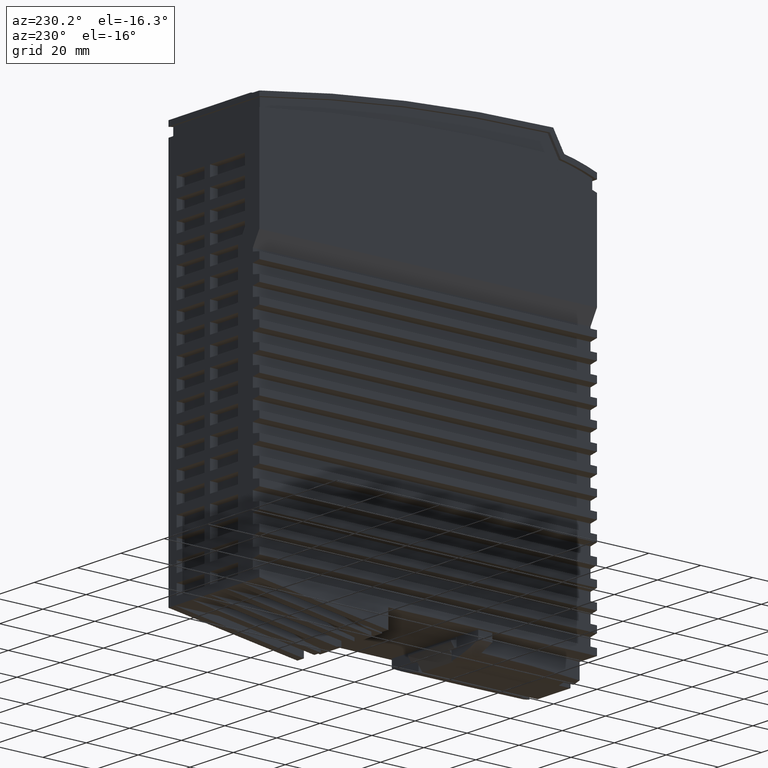
[diagram: clean part render]
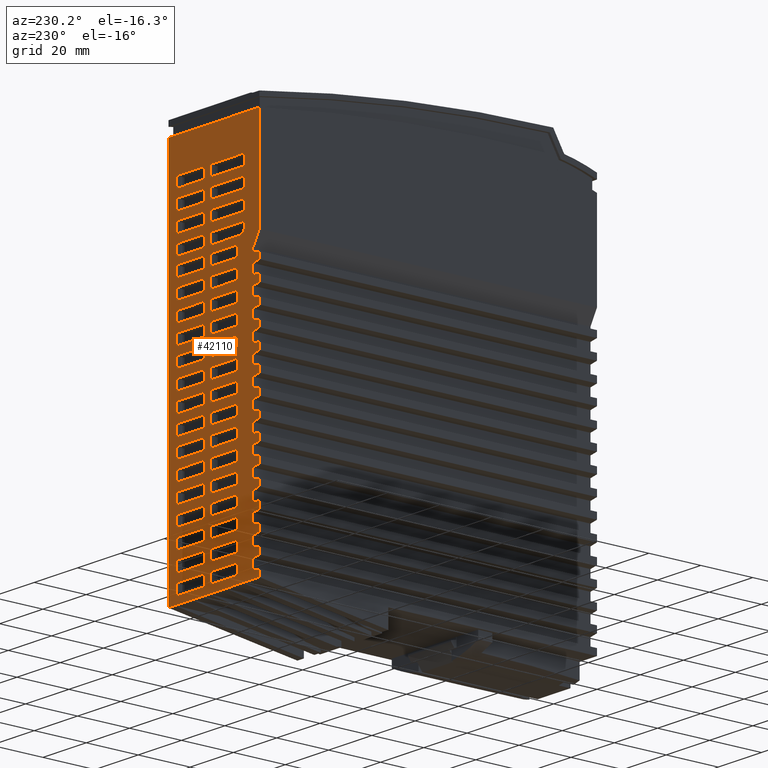
[diagram: same view with one face highlighted and labeled with its STEP entity id]
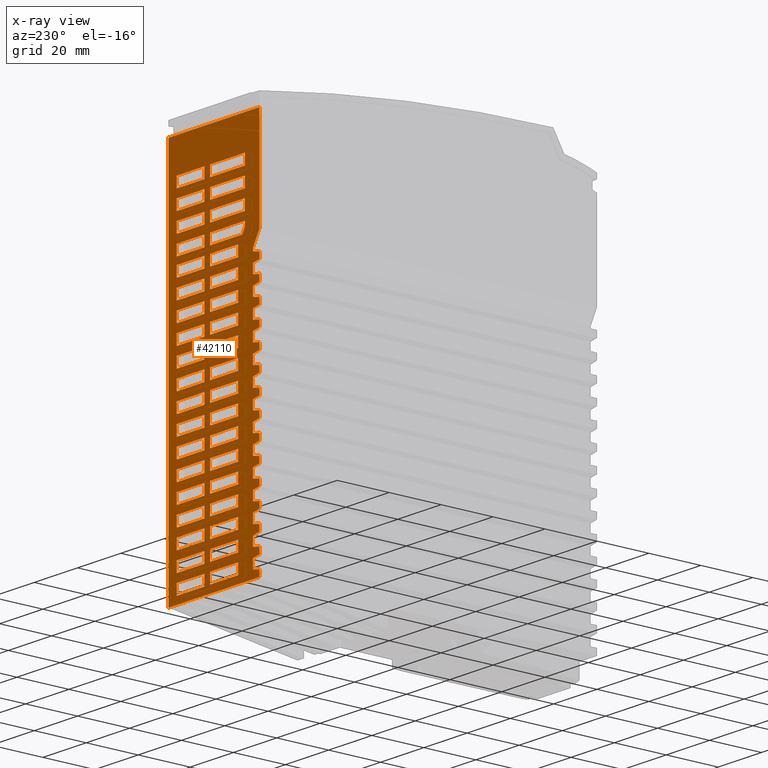
[diagram: x-ray of the same camera — body ghosted, the highlighted face saturated]
A machine part, auxiliary view. The second image highlights one B-rep face of the part: STEP entity #42110.
The next image is the same camera in x-ray: the body ghosted, the highlighted face saturated — about 0% of this face is hidden behind the body in this view.
In plain terms, the highlighted planar face has unit normal (0, -1, -0).
Its self-contained STEP definition (entity closure, byte-faithful):
#3820=CARTESIAN_POINT('',(0.,130.,-27.1));
#3830=VERTEX_POINT('',#3820);
#3860=CARTESIAN_POINT('',(7.67386154620908E-13,130.,4.5));
#3870=DIRECTION('',(0.,0.,1.));
#3880=VECTOR('',#3870,1.);
#3890=LINE('',#3860,#3880);
#3900=CARTESIAN_POINT('',(7.67386154620908E-13,130.,-24.1));
#3910=VERTEX_POINT('',#3900);
#3920=EDGE_CURVE('',#3830,#3910,#3890,.T.);
#7550=CARTESIAN_POINT('',(0.,130.,-42.7));
#7560=VERTEX_POINT('',#7550);
#7860=CARTESIAN_POINT('',(0.,130.,-16.3));
#7870=VERTEX_POINT('',#7860);
#7900=CARTESIAN_POINT('',(0.,130.,4.5));
#7910=DIRECTION('',(0.,0.,1.));
#7920=VECTOR('',#7910,1.);
#7930=LINE('',#7900,#7920);
#7940=CARTESIAN_POINT('',(0.,130.,-11.5));
#7950=VERTEX_POINT('',#7940);
#7960=EDGE_CURVE('',#7870,#7950,#7930,.T.);
#9860=CARTESIAN_POINT('',(7.67386154620908E-13,130.,-34.9));
#9870=VERTEX_POINT('',#9860);
#10430=CARTESIAN_POINT('',(7.67386154620908E-13,130.,-47.5));
#10440=VERTEX_POINT('',#10430);
#10470=CARTESIAN_POINT('',(0.,130.,4.5));
#10480=DIRECTION('',(0.,0.,1.));
#10490=VECTOR('',#10480,1.);
#10500=LINE('',#10470,#10490);
#10510=EDGE_CURVE('',#10440,#7560,#10500,.T.);
#11770=CARTESIAN_POINT('',(0.,130.,4.5));
#11780=DIRECTION('',(0.,0.,1.));
#11790=VECTOR('',#11780,1.);
#11800=LINE('',#11770,#11790);
#11810=CARTESIAN_POINT('',(0.,130.,-19.3));
#11820=VERTEX_POINT('',#11810);
#11830=EDGE_CURVE('',#3910,#11820,#11800,.T.);
#13300=CARTESIAN_POINT('',(0.,130.,-31.9));
#13310=VERTEX_POINT('',#13300);
#13500=CARTESIAN_POINT('',(7.67386154620908E-13,130.,-39.7));
#13510=VERTEX_POINT('',#13500);
#13540=CARTESIAN_POINT('',(0.,130.,4.5));
#13550=DIRECTION('',(0.,0.,1.));
#13560=VECTOR('',#13550,1.);
#13570=LINE('',#13540,#13560);
#13580=EDGE_CURVE('',#13510,#9870,#13570,.T.);
#14510=CARTESIAN_POINT('',(0.,130.,4.5));
#14520=DIRECTION('',(0.,0.,1.));
#14530=VECTOR('',#14520,1.);
#14540=LINE('',#14510,#14530);
#14550=EDGE_CURVE('',#13310,#3830,#14540,.T.);
#18040=CARTESIAN_POINT('',(128.90472881771,130.,-8.5));
#18050=DIRECTION('',(-1.,0.,0.));
#18060=VECTOR('',#18050,1.);
#18070=LINE('',#18040,#18060);
#18080=CARTESIAN_POINT('',(2.47101905787429,130.,-8.5));
#18090=VERTEX_POINT('',#18080);
#18100=CARTESIAN_POINT('',(0.,129.999999999995,-8.5));
#18110=VERTEX_POINT('',#18100);
#18120=EDGE_CURVE('',#18090,#18110,#18070,.T.);
#18720=CARTESIAN_POINT('',(7.67386154620908E-13,130.,4.5));
#18730=DIRECTION('',(0.,0.,1.));
#18740=VECTOR('',#18730,1.);
#18750=LINE('',#18720,#18740);
#18760=EDGE_CURVE('',#7560,#13510,#18750,.T.);
#19010=CARTESIAN_POINT('',(7.67386154620908E-13,130.,4.5));
#19020=DIRECTION('',(0.,0.,1.));
#19030=VECTOR('',#19020,1.);
#19040=LINE('',#19010,#19030);
#19050=EDGE_CURVE('',#7950,#18110,#19040,.T.);
#19100=CARTESIAN_POINT('',(7.67386154620908E-13,130.,4.5));
#19110=DIRECTION('',(0.,0.,1.));
#19120=VECTOR('',#19110,1.);
#19130=LINE('',#19100,#19120);
#19140=EDGE_CURVE('',#9870,#13310,#19130,.T.);
#19240=CARTESIAN_POINT('',(7.67386154620908E-13,130.,4.5));
#19250=DIRECTION('',(0.,0.,1.));
#19260=VECTOR('',#19250,1.);
#19270=LINE('',#19240,#19260);
#19280=EDGE_CURVE('',#11820,#7870,#19270,.T.);
#20060=CARTESIAN_POINT('',(0.,130.,-50.5));
#20070=VERTEX_POINT('',#20060);
#20100=CARTESIAN_POINT('',(7.67386154620908E-13,130.,4.5));
#20110=DIRECTION('',(0.,0.,1.));
#20120=VECTOR('',#20110,1.);
#20130=LINE('',#20100,#20120);
#20140=EDGE_CURVE('',#20070,#10440,#20130,.T.);
#21920=CARTESIAN_POINT('',(6.48652858681227,130.,-11.5));
#21930=VERTEX_POINT('',#21920);
#21960=CARTESIAN_POINT('',(7.28000000000024,130.,-7.));
#21970=DIRECTION('',(0.173648177666902,0.,0.984807753012213));
#21980=VECTOR('',#21970,1.);
#21990=LINE('',#21960,#21980);
#22000=CARTESIAN_POINT('',(7.0155095289376,130.,-8.5));
#22010=VERTEX_POINT('',#22000);
#22020=EDGE_CURVE('',#21930,#22010,#21990,.T.);
#22500=CARTESIAN_POINT('',(144.853503496781,130.,-50.5));
#22510=VERTEX_POINT('',#22500);
#22540=CARTESIAN_POINT('',(128.90472881771,130.,-50.5));
#22550=DIRECTION('',(-1.,0.,0.));
#22560=VECTOR('',#22550,1.);
#22570=LINE('',#22540,#22560);
#22580=EDGE_CURVE('',#22510,#20070,#22570,.T.);
#22990=CARTESIAN_POINT('',(2.9999999999996,130.,-11.5));
#23000=VERTEX_POINT('',#22990);
#23030=CARTESIAN_POINT('',(128.90472881771,130.,-11.5));
#23040=DIRECTION('',(1.,0.,0.));
#23050=VECTOR('',#23040,1.);
#23060=LINE('',#23030,#23050);
#23070=EDGE_CURVE('',#23000,#21930,#23060,.T.);
#23710=CARTESIAN_POINT('',(2.20652858681164,130.,-7.));
#23720=DIRECTION('',(0.173648177666902,0.,-0.984807753012213));
#23730=VECTOR('',#23720,1.);
#23740=LINE('',#23710,#23730);
#23750=EDGE_CURVE('',#18090,#23000,#23740,.T.);
#24980=CARTESIAN_POINT('',(3.,130.,-63.5));
#24990=DIRECTION('',(-0.,-1.,-0.));
#25000=DIRECTION('',(-1.,0.,0.));
#25010=AXIS2_PLACEMENT_3D('',#24980,#24990,#25000);
#25020=PLANE('',#25010);
#25030=CARTESIAN_POINT('',(79.805237398407,130.,4.5));
#25040=DIRECTION('',(0.,0.,1.));
#25050=VECTOR('',#25040,1.);
#25060=LINE('',#25030,#25050);
#25070=CARTESIAN_POINT('',(79.805237398407,130.,-46.69476260159));
#25080=VERTEX_POINT('',#25070);
#25090=CARTESIAN_POINT('',(79.805237398407,130.,-33.90523739841));
#25100=VERTEX_POINT('',#25090);
#25110=EDGE_CURVE('',#25080,#25100,#25060,.T.);
#25120=ORIENTED_EDGE('',*,*,#25110,.F.);
#25130=CARTESIAN_POINT('',(128.90472881771,130.,-33.90523739841));
#25140=DIRECTION('',(1.,0.,0.));
#25150=VECTOR('',#25140,1.);
#25160=LINE('',#25130,#25150);
#25170=CARTESIAN_POINT('',(83.75476260159,130.,-33.90523739841));
#25180=VERTEX_POINT('',#25170);
#25190=EDGE_CURVE('',#25100,#25180,#25160,.T.);
#25200=ORIENTED_EDGE('',*,*,#25190,.F.);
#25210=CARTESIAN_POINT('',(83.75476260159,130.,4.5));
#25220=DIRECTION('',(0.,0.,-1.));
#25230=VECTOR('',#25220,1.);
#25240=LINE('',#25210,#25230);
#25250=CARTESIAN_POINT('',(83.75476260159,130.,-46.69476260159));
#25260=VERTEX_POINT('',#25250);
#25270=EDGE_CURVE('',#25180,#25260,#25240,.T.);
#25280=ORIENTED_EDGE('',*,*,#25270,.F.);
#25290=CARTESIAN_POINT('',(128.90472881771,130.,-46.69476260159));
#25300=DIRECTION('',(-1.,0.,0.));
#25310=VECTOR('',#25300,1.);
#25320=LINE('',#25290,#25310);
#25330=EDGE_CURVE('',#25260,#25080,#25320,.T.);
#25340=ORIENTED_EDGE('',*,*,#25330,.F.);
#25350=EDGE_LOOP('',(#25340,#25280,#25200,#25120));
#25360=FACE_BOUND('',#25350,.T.);
#25370=CARTESIAN_POINT('',(128.90472881771,130.,-33.90523739841));
#25380=DIRECTION('',(1.,0.,0.));
#25390=VECTOR('',#25380,1.);
#25400=LINE('',#25370,#25390);
#25410=CARTESIAN_POINT('',(16.805237398407,130.,-33.90523739841));
#25420=VERTEX_POINT('',#25410);
#25430=CARTESIAN_POINT('',(20.75476260159,130.,-33.90523739841));
#25440=VERTEX_POINT('',#25430);
#25450=EDGE_CURVE('',#25420,#25440,#25400,.T.);
#25460=ORIENTED_EDGE('',*,*,#25450,.F.);
#25470=CARTESIAN_POINT('',(20.75476260159,130.,4.5));
#25480=DIRECTION('',(0.,0.,-1.));
#25490=VECTOR('',#25480,1.);
#25500=LINE('',#25470,#25490);
#25510=CARTESIAN_POINT('',(20.75476260159,130.,-46.69476260159));
#25520=VERTEX_POINT('',#25510);
#25530=EDGE_CURVE('',#25440,#25520,#25500,.T.);
#25540=ORIENTED_EDGE('',*,*,#25530,.F.);
#25550=CARTESIAN_POINT('',(128.90472881771,130.,-46.69476260159));
#25560=DIRECTION('',(-1.,0.,0.));
#25570=VECTOR('',#25560,1.);
#25580=LINE('',#25550,#25570);
#25590=CARTESIAN_POINT('',(16.805237398407,130.,-46.69476260159));
#25600=VERTEX_POINT('',#25590);
#25610=EDGE_CURVE('',#25520,#25600,#25580,.T.);
#25620=ORIENTED_EDGE('',*,*,#25610,.F.);
#25630=CARTESIAN_POINT('',(16.805237398407,130.,4.5));
#25640=DIRECTION('',(0.,0.,1.));
#25650=VECTOR('',#25640,1.);
#25660=LINE('',#25630,#25650);
#25670=EDGE_CURVE('',#25600,#25420,#25660,.T.);
#25680=ORIENTED_EDGE('',*,*,#25670,.F.);
#25690=EDGE_LOOP('',(#25680,#25620,#25540,#25460));
#25700=FACE_BOUND('',#25690,.T.);
#25710=CARTESIAN_POINT('',(62.75476260159,130.,4.5));
#25720=DIRECTION('',(0.,0.,-1.));
#25730=VECTOR('',#25720,1.);
#25740=LINE('',#25710,#25730);
#25750=CARTESIAN_POINT('',(62.75476260159,130.,-33.90523739841));
#25760=VERTEX_POINT('',#25750);
#25770=CARTESIAN_POINT('',(62.75476260159,130.,-46.69476260159));
#25780=VERTEX_POINT('',#25770);
#25790=EDGE_CURVE('',#25760,#25780,#25740,.T.);
#25800=ORIENTED_EDGE('',*,*,#25790,.F.);
#25810=CARTESIAN_POINT('',(128.90472881771,130.,-46.69476260159));
#25820=DIRECTION('',(-1.,0.,0.));
#25830=VECTOR('',#25820,1.);
#25840=LINE('',#25810,#25830);
#25850=CARTESIAN_POINT('',(58.805237398407,130.,-46.69476260159));
#25860=VERTEX_POINT('',#25850);
#25870=EDGE_CURVE('',#25780,#25860,#25840,.T.);
#25880=ORIENTED_EDGE('',*,*,#25870,.F.);
#25890=CARTESIAN_POINT('',(58.805237398407,130.,4.5));
#25900=DIRECTION('',(0.,0.,1.));
#25910=VECTOR('',#25900,1.);
#25920=LINE('',#25890,#25910);
#25930=CARTESIAN_POINT('',(58.805237398407,130.,-33.90523739841));
#25940=VERTEX_POINT('',#25930);
#25950=EDGE_CURVE('',#25860,#25940,#25920,.T.);
#25960=ORIENTED_EDGE('',*,*,#25950,.F.);
#25970=CARTESIAN_POINT('',(128.90472881771,130.,-33.90523739841));
#25980=DIRECTION('',(1.,0.,0.));
#25990=VECTOR('',#25980,1.);
#26000=LINE('',#25970,#25990);
#26010=EDGE_CURVE('',#25940,#25760,#26000,.T.);
#26020=ORIENTED_EDGE('',*,*,#26010,.F.);
#26030=EDGE_LOOP('',(#26020,#25960,#25880,#25800));
#26040=FACE_BOUND('',#26030,.T.);
#26050=CARTESIAN_POINT('',(128.90472881771,130.,-33.90523739841));
#26060=DIRECTION('',(1.,0.,0.));
#26070=VECTOR('',#26060,1.);
#26080=LINE('',#26050,#26070);
#26090=CARTESIAN_POINT('',(2.805237398407,130.,-33.90523739841));
#26100=VERTEX_POINT('',#26090);
#26110=CARTESIAN_POINT('',(6.75476260159,130.,-33.90523739841));
#26120=VERTEX_POINT('',#26110);
#26130=EDGE_CURVE('',#26100,#26120,#26080,.T.);
#26140=ORIENTED_EDGE('',*,*,#26130,.F.);
#26150=CARTESIAN_POINT('',(6.75476260159,130.,4.5));
#26160=DIRECTION('',(0.,0.,-1.));
#26170=VECTOR('',#26160,1.);
#26180=LINE('',#26150,#26170);
#26190=CARTESIAN_POINT('',(6.75476260159,130.,-46.69476260159));
#26200=VERTEX_POINT('',#26190);
#26210=EDGE_CURVE('',#26120,#26200,#26180,.T.);
#26220=ORIENTED_EDGE('',*,*,#26210,.F.);
#26230=CARTESIAN_POINT('',(128.90472881771,130.,-46.69476260159));
#26240=DIRECTION('',(-1.,0.,0.));
#26250=VECTOR('',#26240,1.);
#26260=LINE('',#26230,#26250);
#26270=CARTESIAN_POINT('',(2.805237398407,130.,-46.69476260159));
#26280=VERTEX_POINT('',#26270);
#26290=EDGE_CURVE('',#26200,#26280,#26260,.T.);
#26300=ORIENTED_EDGE('',*,*,#26290,.F.);
#26310=CARTESIAN_POINT('',(2.805237398407,130.,4.5));
#26320=DIRECTION('',(0.,0.,1.));
#26330=VECTOR('',#26320,1.);
#26340=LINE('',#26310,#26330);
#26350=EDGE_CURVE('',#26280,#26100,#26340,.T.);
#26360=ORIENTED_EDGE('',*,*,#26350,.F.);
#26370=EDGE_LOOP('',(#26360,#26300,#26220,#26140));
#26380=FACE_BOUND('',#26370,.T.);
#26390=CARTESIAN_POINT('',(128.90472881771,130.,-33.90523739841));
#26400=DIRECTION('',(1.,0.,0.));
#26410=VECTOR('',#26400,1.);
#26420=LINE('',#26390,#26410);
#26430=CARTESIAN_POINT('',(65.805237398407,130.,-33.90523739841));
#26440=VERTEX_POINT('',#26430);
#26450=CARTESIAN_POINT('',(69.75476260159,130.,-33.90523739841));
#26460=VERTEX_POINT('',#26450);
#26470=EDGE_CURVE('',#26440,#26460,#26420,.T.);
#26480=ORIENTED_EDGE('',*,*,#26470,.F.);
#26490=CARTESIAN_POINT('',(69.75476260159,130.,4.5));
#26500=DIRECTION('',(0.,0.,-1.));
#26510=VECTOR('',#26500,1.);
#26520=LINE('',#26490,#26510);
#26530=CARTESIAN_POINT('',(69.75476260159,130.,-46.69476260159));
#26540=VERTEX_POINT('',#26530);
#26550=EDGE_CURVE('',#26460,#26540,#26520,.T.);
#26560=ORIENTED_EDGE('',*,*,#26550,.F.);
#26570=CARTESIAN_POINT('',(128.90472881771,130.,-46.69476260159));
#26580=DIRECTION('',(-1.,0.,0.));
#26590=VECTOR('',#26580,1.);
#26600=LINE('',#26570,#26590);
#26610=CARTESIAN_POINT('',(65.805237398407,130.,-46.69476260159));
#26620=VERTEX_POINT('',#26610);
#26630=EDGE_CURVE('',#26540,#26620,#26600,.T.);
#26640=ORIENTED_EDGE('',*,*,#26630,.F.);
#26650=CARTESIAN_POINT('',(65.805237398407,130.,4.5));
#26660=DIRECTION('',(0.,0.,1.));
#26670=VECTOR('',#26660,1.);
#26680=LINE('',#26650,#26670);
#26690=EDGE_CURVE('',#26620,#26440,#26680,.T.);
#26700=ORIENTED_EDGE('',*,*,#26690,.F.);
#26710=EDGE_LOOP('',(#26700,#26640,#26560,#26480));
#26720=FACE_BOUND('',#26710,.T.);
#26730=CARTESIAN_POINT('',(128.90472881771,130.,-33.90523739841));
#26740=DIRECTION('',(1.,0.,0.));
#26750=VECTOR('',#26740,1.);
#26760=LINE('',#26730,#26750);
#26770=CARTESIAN_POINT('',(37.805237398407,130.,-33.90523739841));
#26780=VERTEX_POINT('',#26770);
#26790=CARTESIAN_POINT('',(41.75476260159,130.,-33.90523739841));
#26800=VERTEX_POINT('',#26790);
#26810=EDGE_CURVE('',#26780,#26800,#26760,.T.);
#26820=ORIENTED_EDGE('',*,*,#26810,.F.);
#26830=CARTESIAN_POINT('',(41.75476260159,130.,4.5));
#26840=DIRECTION('',(0.,0.,-1.));
#26850=VECTOR('',#26840,1.);
#26860=LINE('',#26830,#26850);
#26870=CARTESIAN_POINT('',(41.75476260159,130.,-46.69476260159));
#26880=VERTEX_POINT('',#26870);
#26890=EDGE_CURVE('',#26800,#26880,#26860,.T.);
#26900=ORIENTED_EDGE('',*,*,#26890,.F.);
#26910=CARTESIAN_POINT('',(128.90472881771,130.,-46.69476260159));
#26920=DIRECTION('',(-1.,0.,0.));
#26930=VECTOR('',#26920,1.);
#26940=LINE('',#26910,#26930);
#26950=CARTESIAN_POINT('',(37.805237398407,130.,-46.69476260159));
#26960=VERTEX_POINT('',#26950);
#26970=EDGE_CURVE('',#26880,#26960,#26940,.T.);
#26980=ORIENTED_EDGE('',*,*,#26970,.F.);
#26990=CARTESIAN_POINT('',(37.805237398407,130.,4.5));
#27000=DIRECTION('',(0.,0.,1.));
#27010=VECTOR('',#27000,1.);
#27020=LINE('',#26990,#27010);
#27030=EDGE_CURVE('',#26960,#26780,#27020,.T.);
#27040=ORIENTED_EDGE('',*,*,#27030,.F.);
#27050=EDGE_LOOP('',(#27040,#26980,#26900,#26820));
#27060=FACE_BOUND('',#27050,.T.);
#27070=CARTESIAN_POINT('',(128.90472881771,130.,-33.90523739841));
#27080=DIRECTION('',(1.,0.,0.));
#27090=VECTOR('',#27080,1.);
#27100=LINE('',#27070,#27090);
#27110=CARTESIAN_POINT('',(86.805237398407,130.,-33.90523739841));
#27120=VERTEX_POINT('',#27110);
#27130=CARTESIAN_POINT('',(90.75476260159,130.,-33.90523739841));
#27140=VERTEX_POINT('',#27130);
#27150=EDGE_CURVE('',#27120,#27140,#27100,.T.);
#27160=ORIENTED_EDGE('',*,*,#27150,.F.);
#27170=CARTESIAN_POINT('',(90.75476260159,130.,4.5));
#27180=DIRECTION('',(0.,0.,-1.));
#27190=VECTOR('',#27180,1.);
#27200=LINE('',#27170,#27190);
#27210=CARTESIAN_POINT('',(90.75476260159,130.,-46.69476260159));
#27220=VERTEX_POINT('',#27210);
#27230=EDGE_CURVE('',#27140,#27220,#27200,.T.);
#27240=ORIENTED_EDGE('',*,*,#27230,.F.);
#27250=CARTESIAN_POINT('',(128.90472881771,130.,-46.69476260159));
#27260=DIRECTION('',(-1.,0.,0.));
#27270=VECTOR('',#27260,1.);
#27280=LINE('',#27250,#27270);
#27290=CARTESIAN_POINT('',(86.805237398407,130.,-46.69476260159));
#27300=VERTEX_POINT('',#27290);
#27310=EDGE_CURVE('',#27220,#27300,#27280,.T.);
#27320=ORIENTED_EDGE('',*,*,#27310,.F.);
#27330=CARTESIAN_POINT('',(86.805237398407,130.,4.5));
#27340=DIRECTION('',(0.,0.,1.));
#27350=VECTOR('',#27340,1.);
#27360=LINE('',#27330,#27350);
#27370=EDGE_CURVE('',#27300,#27120,#27360,.T.);
#27380=ORIENTED_EDGE('',*,*,#27370,.F.);
#27390=EDGE_LOOP('',(#27380,#27320,#27240,#27160));
#27400=FACE_BOUND('',#27390,.T.);
#27410=CARTESIAN_POINT('',(9.805237398407,130.,4.5));
#27420=DIRECTION('',(0.,0.,1.));
#27430=VECTOR('',#27420,1.);
#27440=LINE('',#27410,#27430);
#27450=CARTESIAN_POINT('',(9.805237398407,130.,-46.69476260159));
#27460=VERTEX_POINT('',#27450);
#27470=CARTESIAN_POINT('',(9.805237398407,130.,-33.90523739841));
#27480=VERTEX_POINT('',#27470);
#27490=EDGE_CURVE('',#27460,#27480,#27440,.T.);
#27500=ORIENTED_EDGE('',*,*,#27490,.F.);
#27510=CARTESIAN_POINT('',(128.90472881771,130.,-33.90523739841));
#27520=DIRECTION('',(1.,0.,0.));
#27530=VECTOR('',#27520,1.);
#27540=LINE('',#27510,#27530);
#27550=CARTESIAN_POINT('',(13.75476260159,130.,-33.90523739841));
#27560=VERTEX_POINT('',#27550);
#27570=EDGE_CURVE('',#27480,#27560,#27540,.T.);
#27580=ORIENTED_EDGE('',*,*,#27570,.F.);
#27590=CARTESIAN_POINT('',(13.75476260159,130.,4.5));
#27600=DIRECTION('',(0.,0.,-1.));
#27610=VECTOR('',#27600,1.);
#27620=LINE('',#27590,#27610);
#27630=CARTESIAN_POINT('',(13.75476260159,130.,-46.69476260159));
#27640=VERTEX_POINT('',#27630);
#27650=EDGE_CURVE('',#27560,#27640,#27620,.T.);
#27660=ORIENTED_EDGE('',*,*,#27650,.F.);
#27670=CARTESIAN_POINT('',(128.90472881771,130.,-46.69476260159));
#27680=DIRECTION('',(-1.,0.,0.));
#27690=VECTOR('',#27680,1.);
#27700=LINE('',#27670,#27690);
#27710=EDGE_CURVE('',#27640,#27460,#27700,.T.);
#27720=ORIENTED_EDGE('',*,*,#27710,.F.);
#27730=EDGE_LOOP('',(#27720,#27660,#27580,#27500));
#27740=FACE_BOUND('',#27730,.T.);
#27750=CARTESIAN_POINT('',(128.90472881771,130.,-31.29476260159));
#27760=DIRECTION('',(-1.,0.,0.));
#27770=VECTOR('',#27760,1.);
#27780=LINE('',#27750,#27770);
#27790=CARTESIAN_POINT('',(6.75476260159,130.,-31.29476260159));
#27800=VERTEX_POINT('',#27790);
#27810=CARTESIAN_POINT('',(2.805237398407,130.,-31.29476260159));
#27820=VERTEX_POINT('',#27810);
#27830=EDGE_CURVE('',#27800,#27820,#27780,.T.);
#27840=ORIENTED_EDGE('',*,*,#27830,.F.);
#27850=CARTESIAN_POINT('',(2.805237398407,130.,4.5));
#27860=DIRECTION('',(0.,0.,1.));
#27870=VECTOR('',#27860,1.);
#27880=LINE('',#27850,#27870);
#27890=CARTESIAN_POINT('',(2.805237398407,130.,-18.305237398407));
#27900=VERTEX_POINT('',#27890);
#27910=EDGE_CURVE('',#27820,#27900,#27880,.T.);
#27920=ORIENTED_EDGE('',*,*,#27910,.F.);
#27930=CARTESIAN_POINT('',(128.90472881771,130.,-18.305237398407));
#27940=DIRECTION('',(1.,0.,0.));
#27950=VECTOR('',#27940,1.);
#27960=LINE('',#27930,#27950);
#27970=CARTESIAN_POINT('',(6.75476260159,130.,-18.305237398407));
#27980=VERTEX_POINT('',#27970);
#27990=EDGE_CURVE('',#27900,#27980,#27960,.T.);
#28000=ORIENTED_EDGE('',*,*,#27990,.F.);
#28010=CARTESIAN_POINT('',(6.75476260159,130.,4.5));
#28020=DIRECTION('',(0.,0.,-1.));
#28030=VECTOR('',#28020,1.);
#28040=LINE('',#28010,#28030);
#28050=EDGE_CURVE('',#27980,#27800,#28040,.T.);
#28060=ORIENTED_EDGE('',*,*,#28050,.F.);
#28070=EDGE_LOOP('',(#28060,#28000,#27920,#27840));
#28080=FACE_BOUND('',#28070,.T.);
#28090=CARTESIAN_POINT('',(128.90472881771,130.,-33.90523739841));
#28100=DIRECTION('',(1.,0.,0.));
#28110=VECTOR('',#28100,1.);
#28120=LINE('',#28090,#28110);
#28130=CARTESIAN_POINT('',(72.805237398407,130.,-33.90523739841));
#28140=VERTEX_POINT('',#28130);
#28150=CARTESIAN_POINT('',(76.75476260159,130.,-33.90523739841));
#28160=VERTEX_POINT('',#28150);
#28170=EDGE_CURVE('',#28140,#28160,#28120,.T.);
#28180=ORIENTED_EDGE('',*,*,#28170,.F.);
#28190=CARTESIAN_POINT('',(76.75476260159,130.,4.5));
#28200=DIRECTION('',(0.,0.,-1.));
#28210=VECTOR('',#28200,1.);
#28220=LINE('',#28190,#28210);
#28230=CARTESIAN_POINT('',(76.75476260159,130.,-46.69476260159));
#28240=VERTEX_POINT('',#28230);
#28250=EDGE_CURVE('',#28160,#28240,#28220,.T.);
#28260=ORIENTED_EDGE('',*,*,#28250,.F.);
#28270=CARTESIAN_POINT('',(128.90472881771,130.,-46.69476260159));
#28280=DIRECTION('',(-1.,0.,0.));
#28290=VECTOR('',#28280,1.);
#28300=LINE('',#28270,#28290);
#28310=CARTESIAN_POINT('',(72.805237398407,130.,-46.69476260159));
#28320=VERTEX_POINT('',#28310);
#28330=EDGE_CURVE('',#28240,#28320,#28300,.T.);
#28340=ORIENTED_EDGE('',*,*,#28330,.F.);
#28350=CARTESIAN_POINT('',(72.805237398407,130.,4.5));
#28360=DIRECTION('',(0.,0.,1.));
#28370=VECTOR('',#28360,1.);
#28380=LINE('',#28350,#28370);
#28390=EDGE_CURVE('',#28320,#28140,#28380,.T.);
#28400=ORIENTED_EDGE('',*,*,#28390,.F.);
#28410=EDGE_LOOP('',(#28400,#28340,#28260,#28180));
#28420=FACE_BOUND('',#28410,.T.);
#28430=CARTESIAN_POINT('',(93.805237398407,130.,4.5));
#28440=DIRECTION('',(0.,0.,1.));
#28450=VECTOR('',#28440,1.);
#28460=LINE('',#28430,#28450);
#28470=CARTESIAN_POINT('',(93.805237398407,130.,-46.69476260159));
#28480=VERTEX_POINT('',#28470);
#28490=CARTESIAN_POINT('',(93.805237398407,130.,-33.90523739841));
#28500=VERTEX_POINT('',#28490);
#28510=EDGE_CURVE('',#28480,#28500,#28460,.T.);
#28520=ORIENTED_EDGE('',*,*,#28510,.F.);
#28530=CARTESIAN_POINT('',(128.90472881771,130.,-33.90523739841));
#28540=DIRECTION('',(1.,0.,0.));
#28550=VECTOR('',#28540,1.);
#28560=LINE('',#28530,#28550);
#28570=CARTESIAN_POINT('',(97.75476260159,130.,-33.90523739841));
#28580=VERTEX_POINT('',#28570);
#28590=EDGE_CURVE('',#28500,#28580,#28560,.T.);
#28600=ORIENTED_EDGE('',*,*,#28590,.F.);
#28610=CARTESIAN_POINT('',(97.75476260159,130.,4.5));
#28620=DIRECTION('',(0.,0.,-1.));
#28630=VECTOR('',#28620,1.);
#28640=LINE('',#28610,#28630);
#28650=CARTESIAN_POINT('',(97.75476260159,130.,-46.69476260159));
#28660=VERTEX_POINT('',#28650);
#28670=EDGE_CURVE('',#28580,#28660,#28640,.T.);
#28680=ORIENTED_EDGE('',*,*,#28670,.F.);
#28690=CARTESIAN_POINT('',(128.90472881771,130.,-46.69476260159));
#28700=DIRECTION('',(-1.,0.,0.));
#28710=VECTOR('',#28700,1.);
#28720=LINE('',#28690,#28710);
#28730=EDGE_CURVE('',#28660,#28480,#28720,.T.);
#28740=ORIENTED_EDGE('',*,*,#28730,.F.);
#28750=EDGE_LOOP('',(#28740,#28680,#28600,#28520));
#28760=FACE_BOUND('',#28750,.T.);
#28770=CARTESIAN_POINT('',(128.90472881771,130.,-46.69476260159));
#28780=DIRECTION('',(-1.,0.,0.));
#28790=VECTOR('',#28780,1.);
#28800=LINE('',#28770,#28790);
#28810=CARTESIAN_POINT('',(55.75476260159,130.,-46.69476260159));
#28820=VERTEX_POINT('',#28810);
#28830=CARTESIAN_POINT('',(51.805237398407,130.,-46.69476260159));
#28840=VERTEX_POINT('',#28830);
#28850=EDGE_CURVE('',#28820,#28840,#28800,.T.);
#28860=ORIENTED_EDGE('',*,*,#28850,.F.);
#28870=CARTESIAN_POINT('',(51.805237398407,130.,4.5));
#28880=DIRECTION('',(0.,0.,1.));
#28890=VECTOR('',#28880,1.);
#28900=LINE('',#28870,#28890);
#28910=CARTESIAN_POINT('',(51.805237398407,130.,-33.90523739841));
#28920=VERTEX_POINT('',#28910);
#28930=EDGE_CURVE('',#28840,#28920,#28900,.T.);
#28940=ORIENTED_EDGE('',*,*,#28930,.F.);
#28950=CARTESIAN_POINT('',(128.90472881771,130.,-33.90523739841));
#28960=DIRECTION('',(1.,0.,0.));
#28970=VECTOR('',#28960,1.);
#28980=LINE('',#28950,#28970);
#28990=CARTESIAN_POINT('',(55.75476260159,130.,-33.90523739841));
#29000=VERTEX_POINT('',#28990);
#29010=EDGE_CURVE('',#28920,#29000,#28980,.T.);
#29020=ORIENTED_EDGE('',*,*,#29010,.F.);
#29030=CARTESIAN_POINT('',(55.75476260159,130.,4.5));
#29040=DIRECTION('',(0.,0.,-1.));
#29050=VECTOR('',#29040,1.);
#29060=LINE('',#29030,#29050);
#29070=EDGE_CURVE('',#29000,#28820,#29060,.T.);
#29080=ORIENTED_EDGE('',*,*,#29070,.F.);
#29090=EDGE_LOOP('',(#29080,#29020,#28940,#28860));
#29100=FACE_BOUND('',#29090,.T.);
#29110=CARTESIAN_POINT('',(128.90472881771,130.,-31.29476260159));
#29120=DIRECTION('',(-1.,0.,0.));
#29130=VECTOR('',#29120,1.);
#29140=LINE('',#29110,#29130);
#29150=CARTESIAN_POINT('',(13.75476260159,130.,-31.29476260159));
#29160=VERTEX_POINT('',#29150);
#29170=CARTESIAN_POINT('',(9.805237398407,130.,-31.29476260159));
#29180=VERTEX_POINT('',#29170);
#29190=EDGE_CURVE('',#29160,#29180,#29140,.T.);
#29200=ORIENTED_EDGE('',*,*,#29190,.F.);
#29210=CARTESIAN_POINT('',(9.805237398407,130.,4.5));
#29220=DIRECTION('',(0.,0.,1.));
#29230=VECTOR('',#29220,1.);
#29240=LINE('',#29210,#29230);
#29250=CARTESIAN_POINT('',(9.805237398407,130.,-18.305237398407));
#29260=VERTEX_POINT('',#29250);
#29270=EDGE_CURVE('',#29180,#29260,#29240,.T.);
#29280=ORIENTED_EDGE('',*,*,#29270,.F.);
#29290=CARTESIAN_POINT('',(128.90472881771,130.,-18.305237398407));
#29300=DIRECTION('',(1.,0.,0.));
#29310=VECTOR('',#29300,1.);
#29320=LINE('',#29290,#29310);
#29330=CARTESIAN_POINT('',(13.75476260159,130.,-18.305237398407));
#29340=VERTEX_POINT('',#29330);
#29350=EDGE_CURVE('',#29260,#29340,#29320,.T.);
#29360=ORIENTED_EDGE('',*,*,#29350,.F.);
#29370=CARTESIAN_POINT('',(13.75476260159,130.,4.5));
#29380=DIRECTION('',(0.,0.,-1.));
#29390=VECTOR('',#29380,1.);
#29400=LINE('',#29370,#29390);
#29410=EDGE_CURVE('',#29340,#29160,#29400,.T.);
#29420=ORIENTED_EDGE('',*,*,#29410,.F.);
#29430=EDGE_LOOP('',(#29420,#29360,#29280,#29200));
#29440=FACE_BOUND('',#29430,.T.);
#29450=CARTESIAN_POINT('',(27.75476260159,130.,4.5));
#29460=DIRECTION('',(0.,0.,-1.));
#29470=VECTOR('',#29460,1.);
#29480=LINE('',#29450,#29470);
#29490=CARTESIAN_POINT('',(27.75476260159,130.,-33.90523739841));
#29500=VERTEX_POINT('',#29490);
#29510=CARTESIAN_POINT('',(27.75476260159,130.,-46.69476260159));
#29520=VERTEX_POINT('',#29510);
#29530=EDGE_CURVE('',#29500,#29520,#29480,.T.);
#29540=ORIENTED_EDGE('',*,*,#29530,.F.);
#29550=CARTESIAN_POINT('',(128.90472881771,130.,-46.69476260159));
#29560=DIRECTION('',(-1.,0.,0.));
#29570=VECTOR('',#29560,1.);
#29580=LINE('',#29550,#29570);
#29590=CARTESIAN_POINT('',(23.805237398407,130.,-46.69476260159));
#29600=VERTEX_POINT('',#29590);
#29610=EDGE_CURVE('',#29520,#29600,#29580,.T.);
#29620=ORIENTED_EDGE('',*,*,#29610,.F.);
#29630=CARTESIAN_POINT('',(23.805237398407,130.,4.5));
#29640=DIRECTION('',(0.,0.,1.));
#29650=VECTOR('',#29640,1.);
#29660=LINE('',#29630,#29650);
#29670=CARTESIAN_POINT('',(23.805237398407,130.,-33.90523739841));
#29680=VERTEX_POINT('',#29670);
#29690=EDGE_CURVE('',#29600,#29680,#29660,.T.);
#29700=ORIENTED_EDGE('',*,*,#29690,.F.);
#29710=CARTESIAN_POINT('',(128.90472881771,130.,-33.90523739841));
#29720=DIRECTION('',(1.,0.,0.));
#29730=VECTOR('',#29720,1.);
#29740=LINE('',#29710,#29730);
#29750=EDGE_CURVE('',#29680,#29500,#29740,.T.);
#29760=ORIENTED_EDGE('',*,*,#29750,.F.);
#29770=EDGE_LOOP('',(#29760,#29700,#29620,#29540));
#29780=FACE_BOUND('',#29770,.T.);
#29790=CARTESIAN_POINT('',(128.90472881771,130.,-31.29476260159));
#29800=DIRECTION('',(-1.,0.,0.));
#29810=VECTOR('',#29800,1.);
#29820=LINE('',#29790,#29810);
#29830=CARTESIAN_POINT('',(132.3147626016,130.,-31.29476260159));
#29840=VERTEX_POINT('',#29830);
#29850=CARTESIAN_POINT('',(128.3652373984,130.,-31.29476260159));
#29860=VERTEX_POINT('',#29850);
#29870=EDGE_CURVE('',#29840,#29860,#29820,.T.);
#29880=ORIENTED_EDGE('',*,*,#29870,.F.);
#29890=CARTESIAN_POINT('',(128.3652373984,130.,4.5));
#29900=DIRECTION('',(0.,0.,1.));
#29910=VECTOR('',#29900,1.);
#29920=LINE('',#29890,#29910);
#29930=CARTESIAN_POINT('',(128.3652373984,130.,-15.205237398407));
#29940=VERTEX_POINT('',#29930);
#29950=EDGE_CURVE('',#29860,#29940,#29920,.T.);
#29960=ORIENTED_EDGE('',*,*,#29950,.F.);
#29970=CARTESIAN_POINT('',(128.90472881771,130.,-15.205237398407));
#29980=DIRECTION('',(1.,0.,0.));
#29990=VECTOR('',#29980,1.);
#30000=LINE('',#29970,#29990);
#30010=CARTESIAN_POINT('',(132.3147626016,130.,-15.205237398407));
#30020=VERTEX_POINT('',#30010);
#30030=EDGE_CURVE('',#29940,#30020,#30000,.T.);
#30040=ORIENTED_EDGE('',*,*,#30030,.F.);
#30050=CARTESIAN_POINT('',(132.3147626016,130.,4.5));
#30060=DIRECTION('',(0.,0.,-1.));
#30070=VECTOR('',#30060,1.);
#30080=LINE('',#30050,#30070);
#30090=EDGE_CURVE('',#30020,#29840,#30080,.T.);
#30100=ORIENTED_EDGE('',*,*,#30090,.F.);
#30110=EDGE_LOOP('',(#30100,#30040,#29960,#29880));
#30120=FACE_BOUND('',#30110,.T.);
#30130=CARTESIAN_POINT('',(128.90472881771,130.,-31.29476260159));
#30140=DIRECTION('',(-1.,0.,0.));
#30150=VECTOR('',#30140,1.);
#30160=LINE('',#30130,#30150);
#30170=CARTESIAN_POINT('',(125.3147626016,130.,-31.29476260159));
#30180=VERTEX_POINT('',#30170);
#30190=CARTESIAN_POINT('',(121.3652373984,130.,-31.29476260159));
#30200=VERTEX_POINT('',#30190);
#30210=EDGE_CURVE('',#30180,#30200,#30160,.T.);
#30220=ORIENTED_EDGE('',*,*,#30210,.F.);
#30230=CARTESIAN_POINT('',(121.3652373984,130.,4.5));
#30240=DIRECTION('',(0.,0.,1.));
#30250=VECTOR('',#30240,1.);
#30260=LINE('',#30230,#30250);
#30270=CARTESIAN_POINT('',(121.3652373984,130.,-15.205237398407));
#30280=VERTEX_POINT('',#30270);
#30290=EDGE_CURVE('',#30200,#30280,#30260,.T.);
#30300=ORIENTED_EDGE('',*,*,#30290,.F.);
#30310=CARTESIAN_POINT('',(128.90472881771,130.,-15.205237398407));
#30320=DIRECTION('',(1.,0.,0.));
#30330=VECTOR('',#30320,1.);
#30340=LINE('',#30310,#30330);
#30350=CARTESIAN_POINT('',(125.3147626016,130.,-15.205237398407));
#30360=VERTEX_POINT('',#30350);
#30370=EDGE_CURVE('',#30280,#30360,#30340,.T.);
#30380=ORIENTED_EDGE('',*,*,#30370,.F.);
#30390=CARTESIAN_POINT('',(125.3147626016,130.,4.5));
#30400=DIRECTION('',(0.,0.,-1.));
#30410=VECTOR('',#30400,1.);
#30420=LINE('',#30390,#30410);
#30430=EDGE_CURVE('',#30360,#30180,#30420,.T.);
#30440=ORIENTED_EDGE('',*,*,#30430,.F.);
#30450=EDGE_LOOP('',(#30440,#30380,#30300,#30220));
#30460=FACE_BOUND('',#30450,.T.);
#30470=CARTESIAN_POINT('',(128.90472881771,130.,-31.29476260159));
#30480=DIRECTION('',(-1.,0.,0.));
#30490=VECTOR('',#30480,1.);
#30500=LINE('',#30470,#30490);
#30510=CARTESIAN_POINT('',(118.3147626016,130.,-31.29476260159));
#30520=VERTEX_POINT('',#30510);
#30530=CARTESIAN_POINT('',(114.3652373984,130.,-31.29476260159));
#30540=VERTEX_POINT('',#30530);
#30550=EDGE_CURVE('',#30520,#30540,#30500,.T.);
#30560=ORIENTED_EDGE('',*,*,#30550,.F.);
#30570=CARTESIAN_POINT('',(114.3652373984,130.,4.5));
#30580=DIRECTION('',(0.,0.,1.));
#30590=VECTOR('',#30580,1.);
#30600=LINE('',#30570,#30590);
#30610=CARTESIAN_POINT('',(114.3652373984,130.,-15.205237398407));
#30620=VERTEX_POINT('',#30610);
#30630=EDGE_CURVE('',#30540,#30620,#30600,.T.);
#30640=ORIENTED_EDGE('',*,*,#30630,.F.);
#30650=CARTESIAN_POINT('',(128.90472881771,130.,-15.205237398407));
#30660=DIRECTION('',(1.,0.,0.));
#30670=VECTOR('',#30660,1.);
#30680=LINE('',#30650,#30670);
#30690=CARTESIAN_POINT('',(118.3147626016,130.,-15.205237398407));
#30700=VERTEX_POINT('',#30690);
#30710=EDGE_CURVE('',#30620,#30700,#30680,.T.);
#30720=ORIENTED_EDGE('',*,*,#30710,.F.);
#30730=CARTESIAN_POINT('',(118.3147626016,130.,4.5));
#30740=DIRECTION('',(0.,0.,-1.));
#30750=VECTOR('',#30740,1.);
#30760=LINE('',#30730,#30750);
#30770=EDGE_CURVE('',#30700,#30520,#30760,.T.);
#30780=ORIENTED_EDGE('',*,*,#30770,.F.);
#30790=EDGE_LOOP('',(#30780,#30720,#30640,#30560));
#30800=FACE_BOUND('',#30790,.T.);
#30810=CARTESIAN_POINT('',(128.90472881771,130.,-31.29476260159));
#30820=DIRECTION('',(1.,0.,0.));
#30830=VECTOR('',#30820,1.);
#30840=LINE('',#30810,#30830);
#30850=CARTESIAN_POINT('',(107.3652373984,130.,-31.29476260159));
#30860=VERTEX_POINT('',#30850);
#30870=CARTESIAN_POINT('',(111.3147626016,130.,-31.29476260159));
#30880=VERTEX_POINT('',#30870);
#30890=EDGE_CURVE('',#30860,#30880,#30840,.T.);
#30900=ORIENTED_EDGE('',*,*,#30890,.T.);
#30910=CARTESIAN_POINT('',(107.3652373984,130.,4.5));
#30920=DIRECTION('',(0.,0.,-1.));
#30930=VECTOR('',#30920,1.);
#30940=LINE('',#30910,#30930);
#30950=CARTESIAN_POINT('',(107.3652373984,130.,-16.403364356772));
#30960=VERTEX_POINT('',#30950);
#30970=EDGE_CURVE('',#30960,#30860,#30940,.T.);
#30980=ORIENTED_EDGE('',*,*,#30970,.T.);
#30990=CARTESIAN_POINT('',(128.90472881771,130.,-3.96753318761889));
#31000=DIRECTION('',(-0.866025403784318,-0.,-0.50000000000021));
#31010=VECTOR('',#31000,1.);
#31020=LINE('',#30990,#31010);
#31030=CARTESIAN_POINT('',(109.440454164205,130.,-15.205237398407));
#31040=VERTEX_POINT('',#31030);
#31050=EDGE_CURVE('',#31040,#30960,#31020,.T.);
#31060=ORIENTED_EDGE('',*,*,#31050,.T.);
#31070=CARTESIAN_POINT('',(128.90472881771,130.,-15.205237398407));
#31080=DIRECTION('',(-1.,0.,0.));
#31090=VECTOR('',#31080,1.);
#31100=LINE('',#31070,#31090);
#31110=CARTESIAN_POINT('',(111.3147626016,130.,-15.205237398407));
#31120=VERTEX_POINT('',#31110);
#31130=EDGE_CURVE('',#31120,#31040,#31100,.T.);
#31140=ORIENTED_EDGE('',*,*,#31130,.T.);
#31150=CARTESIAN_POINT('',(111.3147626016,130.,4.5));
#31160=DIRECTION('',(0.,0.,1.));
#31170=VECTOR('',#31160,1.);
#31180=LINE('',#31150,#31170);
#31190=EDGE_CURVE('',#30880,#31120,#31180,.T.);
#31200=ORIENTED_EDGE('',*,*,#31190,.T.);
#31210=EDGE_LOOP('',(#31200,#31140,#31060,#30980,#30900));
#31220=FACE_BOUND('',#31210,.T.);
#31230=CARTESIAN_POINT('',(128.90472881771,130.,-31.29476260159));
#31240=DIRECTION('',(-1.,0.,0.));
#31250=VECTOR('',#31240,1.);
#31260=LINE('',#31230,#31250);
#31270=CARTESIAN_POINT('',(97.75476260159,130.,-31.29476260159));
#31280=VERTEX_POINT('',#31270);
#31290=CARTESIAN_POINT('',(93.805237398407,130.,-31.29476260159));
#31300=VERTEX_POINT('',#31290);
#31310=EDGE_CURVE('',#31280,#31300,#31260,.T.);
#31320=ORIENTED_EDGE('',*,*,#31310,.F.);
#31330=CARTESIAN_POINT('',(93.805237398407,130.,4.5));
#31340=DIRECTION('',(0.,0.,1.));
#31350=VECTOR('',#31340,1.);
#31360=LINE('',#31330,#31350);
#31370=CARTESIAN_POINT('',(93.805237398407,130.,-18.305237398407));
#31380=VERTEX_POINT('',#31370);
#31390=EDGE_CURVE('',#31300,#31380,#31360,.T.);
#31400=ORIENTED_EDGE('',*,*,#31390,.F.);
#31410=CARTESIAN_POINT('',(128.90472881771,130.,-18.305237398407));
#31420=DIRECTION('',(1.,0.,0.));
#31430=VECTOR('',#31420,1.);
#31440=LINE('',#31410,#31430);
#31450=CARTESIAN_POINT('',(97.75476260159,130.,-18.305237398407));
#31460=VERTEX_POINT('',#31450);
#31470=EDGE_CURVE('',#31380,#31460,#31440,.T.);
#31480=ORIENTED_EDGE('',*,*,#31470,.F.);
#31490=CARTESIAN_POINT('',(97.75476260159,130.,4.5));
#31500=DIRECTION('',(0.,0.,-1.));
#31510=VECTOR('',#31500,1.);
#31520=LINE('',#31490,#31510);
#31530=EDGE_CURVE('',#31460,#31280,#31520,.T.);
#31540=ORIENTED_EDGE('',*,*,#31530,.F.);
#31550=EDGE_LOOP('',(#31540,#31480,#31400,#31320));
#31560=FACE_BOUND('',#31550,.T.);
#31570=CARTESIAN_POINT('',(128.90472881771,130.,-31.29476260159));
#31580=DIRECTION('',(-1.,0.,0.));
#31590=VECTOR('',#31580,1.);
#31600=LINE('',#31570,#31590);
#31610=CARTESIAN_POINT('',(20.75476260159,130.,-31.29476260159));
#31620=VERTEX_POINT('',#31610);
#31630=CARTESIAN_POINT('',(16.805237398407,130.,-31.29476260159));
#31640=VERTEX_POINT('',#31630);
#31650=EDGE_CURVE('',#31620,#31640,#31600,.T.);
#31660=ORIENTED_EDGE('',*,*,#31650,.F.);
#31670=CARTESIAN_POINT('',(16.805237398407,130.,4.5));
#31680=DIRECTION('',(0.,0.,1.));
#31690=VECTOR('',#31680,1.);
#31700=LINE('',#31670,#31690);
#31710=CARTESIAN_POINT('',(16.805237398407,130.,-18.305237398407));
#31720=VERTEX_POINT('',#31710);
#31730=EDGE_CURVE('',#31640,#31720,#31700,.T.);
#31740=ORIENTED_EDGE('',*,*,#31730,.F.);
#31750=CARTESIAN_POINT('',(128.90472881771,130.,-18.305237398407));
#31760=DIRECTION('',(1.,0.,0.));
#31770=VECTOR('',#31760,1.);
#31780=LINE('',#31750,#31770);
#31790=CARTESIAN_POINT('',(20.75476260159,130.,-18.305237398407));
#31800=VERTEX_POINT('',#31790);
#31810=EDGE_CURVE('',#31720,#31800,#31780,.T.);
#31820=ORIENTED_EDGE('',*,*,#31810,.F.);
#31830=CARTESIAN_POINT('',(20.75476260159,130.,4.5));
#31840=DIRECTION('',(0.,0.,-1.));
#31850=VECTOR('',#31840,1.);
#31860=LINE('',#31830,#31850);
#31870=EDGE_CURVE('',#31800,#31620,#31860,.T.);
#31880=ORIENTED_EDGE('',*,*,#31870,.F.);
#31890=EDGE_LOOP('',(#31880,#31820,#31740,#31660));
#31900=FACE_BOUND('',#31890,.T.);
#31910=CARTESIAN_POINT('',(128.90472881771,130.,-31.29476260159));
#31920=DIRECTION('',(-1.,0.,0.));
#31930=VECTOR('',#31920,1.);
#31940=LINE('',#31910,#31930);
#31950=CARTESIAN_POINT('',(90.75476260159,130.,-31.29476260159));
#31960=VERTEX_POINT('',#31950);
#31970=CARTESIAN_POINT('',(86.805237398407,130.,-31.29476260159));
#31980=VERTEX_POINT('',#31970);
#31990=EDGE_CURVE('',#31960,#31980,#31940,.T.);
#32000=ORIENTED_EDGE('',*,*,#31990,.F.);
#32010=CARTESIAN_POINT('',(86.805237398407,130.,4.5));
#32020=DIRECTION('',(0.,0.,1.));
#32030=VECTOR('',#32020,1.);
#32040=LINE('',#32010,#32030);
#32050=CARTESIAN_POINT('',(86.805237398407,130.,-18.305237398407));
#32060=VERTEX_POINT('',#32050);
#32070=EDGE_CURVE('',#31980,#32060,#32040,.T.);
#32080=ORIENTED_EDGE('',*,*,#32070,.F.);
#32090=CARTESIAN_POINT('',(128.90472881771,130.,-18.305237398407));
#32100=DIRECTION('',(1.,0.,0.));
#32110=VECTOR('',#32100,1.);
#32120=LINE('',#32090,#32110);
#32130=CARTESIAN_POINT('',(90.75476260159,130.,-18.305237398407));
#32140=VERTEX_POINT('',#32130);
#32150=EDGE_CURVE('',#32060,#32140,#32120,.T.);
#32160=ORIENTED_EDGE('',*,*,#32150,.F.);
#32170=CARTESIAN_POINT('',(90.75476260159,130.,4.5));
#32180=DIRECTION('',(0.,0.,-1.));
#32190=VECTOR('',#32180,1.);
#32200=LINE('',#32170,#32190);
#32210=EDGE_CURVE('',#32140,#31960,#32200,.T.);
#32220=ORIENTED_EDGE('',*,*,#32210,.F.);
#32230=EDGE_LOOP('',(#32220,#32160,#32080,#32000));
#32240=FACE_BOUND('',#32230,.T.);
#32250=CARTESIAN_POINT('',(128.90472881771,130.,-31.29476260159));
#32260=DIRECTION('',(-1.,0.,0.));
#32270=VECTOR('',#32260,1.);
#32280=LINE('',#32250,#32270);
#32290=CARTESIAN_POINT('',(83.75476260159,130.,-31.29476260159));
#32300=VERTEX_POINT('',#32290);
#32310=CARTESIAN_POINT('',(79.805237398407,130.,-31.29476260159));
#32320=VERTEX_POINT('',#32310);
#32330=EDGE_CURVE('',#32300,#32320,#32280,.T.);
#32340=ORIENTED_EDGE('',*,*,#32330,.F.);
#32350=CARTESIAN_POINT('',(79.805237398407,130.,4.5));
#32360=DIRECTION('',(0.,0.,1.));
#32370=VECTOR('',#32360,1.);
#32380=LINE('',#32350,#32370);
#32390=CARTESIAN_POINT('',(79.805237398407,130.,-18.305237398407));
#32400=VERTEX_POINT('',#32390);
#32410=EDGE_CURVE('',#32320,#32400,#32380,.T.);
#32420=ORIENTED_EDGE('',*,*,#32410,.F.);
#32430=CARTESIAN_POINT('',(128.90472881771,130.,-18.305237398407));
#32440=DIRECTION('',(1.,0.,0.));
#32450=VECTOR('',#32440,1.);
#32460=LINE('',#32430,#32450);
#32470=CARTESIAN_POINT('',(83.75476260159,130.,-18.305237398407));
#32480=VERTEX_POINT('',#32470);
#32490=EDGE_CURVE('',#32400,#32480,#32460,.T.);
#32500=ORIENTED_EDGE('',*,*,#32490,.F.);
#32510=CARTESIAN_POINT('',(83.75476260159,130.,4.5));
#32520=DIRECTION('',(0.,0.,-1.));
#32530=VECTOR('',#32520,1.);
#32540=LINE('',#32510,#32530);
#32550=EDGE_CURVE('',#32480,#32300,#32540,.T.);
#32560=ORIENTED_EDGE('',*,*,#32550,.F.);
#32570=EDGE_LOOP('',(#32560,#32500,#32420,#32340));
#32580=FACE_BOUND('',#32570,.T.);
#32590=CARTESIAN_POINT('',(128.90472881771,130.,-31.29476260159));
#32600=DIRECTION('',(-1.,0.,0.));
#32610=VECTOR('',#32600,1.);
#32620=LINE('',#32590,#32610);
#32630=CARTESIAN_POINT('',(76.75476260159,130.,-31.29476260159));
#32640=VERTEX_POINT('',#32630);
#32650=CARTESIAN_POINT('',(72.805237398407,130.,-31.29476260159));
#32660=VERTEX_POINT('',#32650);
#32670=EDGE_CURVE('',#32640,#32660,#32620,.T.);
#32680=ORIENTED_EDGE('',*,*,#32670,.F.);
#32690=CARTESIAN_POINT('',(72.805237398407,130.,4.5));
#32700=DIRECTION('',(0.,0.,1.));
#32710=VECTOR('',#32700,1.);
#32720=LINE('',#32690,#32710);
#32730=CARTESIAN_POINT('',(72.805237398407,130.,-18.305237398407));
#32740=VERTEX_POINT('',#32730);
#32750=EDGE_CURVE('',#32660,#32740,#32720,.T.);
#32760=ORIENTED_EDGE('',*,*,#32750,.F.);
#32770=CARTESIAN_POINT('',(128.90472881771,130.,-18.305237398407));
#32780=DIRECTION('',(1.,0.,0.));
#32790=VECTOR('',#32780,1.);
#32800=LINE('',#32770,#32790);
#32810=CARTESIAN_POINT('',(76.75476260159,130.,-18.305237398407));
#32820=VERTEX_POINT('',#32810);
#32830=EDGE_CURVE('',#32740,#32820,#32800,.T.);
#32840=ORIENTED_EDGE('',*,*,#32830,.F.);
#32850=CARTESIAN_POINT('',(76.75476260159,130.,4.5));
#32860=DIRECTION('',(0.,0.,-1.));
#32870=VECTOR('',#32860,1.);
#32880=LINE('',#32850,#32870);
#32890=EDGE_CURVE('',#32820,#32640,#32880,.T.);
#32900=ORIENTED_EDGE('',*,*,#32890,.F.);
#32910=EDGE_LOOP('',(#32900,#32840,#32760,#32680));
#32920=FACE_BOUND('',#32910,.T.);
#32930=CARTESIAN_POINT('',(128.90472881771,130.,-31.29476260159));
#32940=DIRECTION('',(-1.,0.,0.));
#32950=VECTOR('',#32940,1.);
#32960=LINE('',#32930,#32950);
#32970=CARTESIAN_POINT('',(69.75476260159,130.,-31.29476260159));
#32980=VERTEX_POINT('',#32970);
#32990=CARTESIAN_POINT('',(65.805237398407,130.,-31.29476260159));
#33000=VERTEX_POINT('',#32990);
#33010=EDGE_CURVE('',#32980,#33000,#32960,.T.);
#33020=ORIENTED_EDGE('',*,*,#33010,.F.);
#33030=CARTESIAN_POINT('',(65.805237398407,130.,4.5));
#33040=DIRECTION('',(0.,0.,1.));
#33050=VECTOR('',#33040,1.);
#33060=LINE('',#33030,#33050);
#33070=CARTESIAN_POINT('',(65.805237398407,130.,-18.305237398407));
#33080=VERTEX_POINT('',#33070);
#33090=EDGE_CURVE('',#33000,#33080,#33060,.T.);
#33100=ORIENTED_EDGE('',*,*,#33090,.F.);
#33110=CARTESIAN_POINT('',(128.90472881771,130.,-18.305237398407));
#33120=DIRECTION('',(1.,0.,0.));
#33130=VECTOR('',#33120,1.);
#33140=LINE('',#33110,#33130);
#33150=CARTESIAN_POINT('',(69.75476260159,130.,-18.305237398407));
#33160=VERTEX_POINT('',#33150);
#33170=EDGE_CURVE('',#33080,#33160,#33140,.T.);
#33180=ORIENTED_EDGE('',*,*,#33170,.F.);
#33190=CARTESIAN_POINT('',(69.75476260159,130.,4.5));
#33200=DIRECTION('',(0.,0.,-1.));
#33210=VECTOR('',#33200,1.);
#33220=LINE('',#33190,#33210);
#33230=EDGE_CURVE('',#33160,#32980,#33220,.T.);
#33240=ORIENTED_EDGE('',*,*,#33230,.F.);
#33250=EDGE_LOOP('',(#33240,#33180,#33100,#33020));
#33260=FACE_BOUND('',#33250,.T.);
#33270=CARTESIAN_POINT('',(128.90472881771,130.,-31.29476260159));
#33280=DIRECTION('',(-1.,0.,0.));
#33290=VECTOR('',#33280,1.);
#33300=LINE('',#33270,#33290);
#33310=CARTESIAN_POINT('',(62.75476260159,130.,-31.29476260159));
#33320=VERTEX_POINT('',#33310);
#33330=CARTESIAN_POINT('',(58.805237398407,130.,-31.29476260159));
#33340=VERTEX_POINT('',#33330);
#33350=EDGE_CURVE('',#33320,#33340,#33300,.T.);
#33360=ORIENTED_EDGE('',*,*,#33350,.F.);
#33370=CARTESIAN_POINT('',(58.805237398407,130.,4.5));
#33380=DIRECTION('',(0.,0.,1.));
#33390=VECTOR('',#33380,1.);
#33400=LINE('',#33370,#33390);
#33410=CARTESIAN_POINT('',(58.805237398407,130.,-18.305237398407));
#33420=VERTEX_POINT('',#33410);
#33430=EDGE_CURVE('',#33340,#33420,#33400,.T.);
#33440=ORIENTED_EDGE('',*,*,#33430,.F.);
#33450=CARTESIAN_POINT('',(128.90472881771,130.,-18.305237398407));
#33460=DIRECTION('',(1.,0.,0.));
#33470=VECTOR('',#33460,1.);
#33480=LINE('',#33450,#33470);
#33490=CARTESIAN_POINT('',(62.75476260159,130.,-18.305237398407));
#33500=VERTEX_POINT('',#33490);
#33510=EDGE_CURVE('',#33420,#33500,#33480,.T.);
#33520=ORIENTED_EDGE('',*,*,#33510,.F.);
#33530=CARTESIAN_POINT('',(62.75476260159,130.,4.5));
#33540=DIRECTION('',(0.,0.,-1.));
#33550=VECTOR('',#33540,1.);
#33560=LINE('',#33530,#33550);
#33570=EDGE_CURVE('',#33500,#33320,#33560,.T.);
#33580=ORIENTED_EDGE('',*,*,#33570,.F.);
#33590=EDGE_LOOP('',(#33580,#33520,#33440,#33360));
#33600=FACE_BOUND('',#33590,.T.);
#33610=CARTESIAN_POINT('',(128.90472881771,130.,-31.29476260159));
#33620=DIRECTION('',(-1.,0.,0.));
#33630=VECTOR('',#33620,1.);
#33640=LINE('',#33610,#33630);
#33650=CARTESIAN_POINT('',(55.75476260159,130.,-31.29476260159));
#33660=VERTEX_POINT('',#33650);
#33670=CARTESIAN_POINT('',(51.805237398407,130.,-31.29476260159));
#33680=VERTEX_POINT('',#33670);
#33690=EDGE_CURVE('',#33660,#33680,#33640,.T.);
#33700=ORIENTED_EDGE('',*,*,#33690,.F.);
#33710=CARTESIAN_POINT('',(51.805237398407,130.,4.5));
#33720=DIRECTION('',(0.,0.,1.));
#33730=VECTOR('',#33720,1.);
#33740=LINE('',#33710,#33730);
#33750=CARTESIAN_POINT('',(51.805237398407,130.,-18.305237398407));
#33760=VERTEX_POINT('',#33750);
#33770=EDGE_CURVE('',#33680,#33760,#33740,.T.);
#33780=ORIENTED_EDGE('',*,*,#33770,.F.);
#33790=CARTESIAN_POINT('',(128.90472881771,130.,-18.305237398407));
#33800=DIRECTION('',(1.,0.,0.));
#33810=VECTOR('',#33800,1.);
#33820=LINE('',#33790,#33810);
#33830=CARTESIAN_POINT('',(55.75476260159,130.,-18.305237398407));
#33840=VERTEX_POINT('',#33830);
#33850=EDGE_CURVE('',#33760,#33840,#33820,.T.);
#33860=ORIENTED_EDGE('',*,*,#33850,.F.);
#33870=CARTESIAN_POINT('',(55.75476260159,130.,4.5));
#33880=DIRECTION('',(0.,0.,-1.));
#33890=VECTOR('',#33880,1.);
#33900=LINE('',#33870,#33890);
#33910=EDGE_CURVE('',#33840,#33660,#33900,.T.);
#33920=ORIENTED_EDGE('',*,*,#33910,.F.);
#33930=EDGE_LOOP('',(#33920,#33860,#33780,#33700));
#33940=FACE_BOUND('',#33930,.T.);
#33950=CARTESIAN_POINT('',(128.90472881771,130.,-31.29476260159));
#33960=DIRECTION('',(-1.,0.,0.));
#33970=VECTOR('',#33960,1.);
#33980=LINE('',#33950,#33970);
#33990=CARTESIAN_POINT('',(48.75476260159,130.,-31.29476260159));
#34000=VERTEX_POINT('',#33990);
#34010=CARTESIAN_POINT('',(44.805237398407,130.,-31.29476260159));
#34020=VERTEX_POINT('',#34010);
#34030=EDGE_CURVE('',#34000,#34020,#33980,.T.);
#34040=ORIENTED_EDGE('',*,*,#34030,.F.);
#34050=CARTESIAN_POINT('',(44.805237398407,130.,4.5));
#34060=DIRECTION('',(0.,0.,1.));
#34070=VECTOR('',#34060,1.);
#34080=LINE('',#34050,#34070);
#34090=CARTESIAN_POINT('',(44.805237398407,130.,-18.305237398407));
#34100=VERTEX_POINT('',#34090);
#34110=EDGE_CURVE('',#34020,#34100,#34080,.T.);
#34120=ORIENTED_EDGE('',*,*,#34110,.F.);
#34130=CARTESIAN_POINT('',(128.90472881771,130.,-18.305237398407));
#34140=DIRECTION('',(1.,0.,0.));
#34150=VECTOR('',#34140,1.);
#34160=LINE('',#34130,#34150);
#34170=CARTESIAN_POINT('',(48.75476260159,130.,-18.305237398407));
#34180=VERTEX_POINT('',#34170);
#34190=EDGE_CURVE('',#34100,#34180,#34160,.T.);
#34200=ORIENTED_EDGE('',*,*,#34190,.F.);
#34210=CARTESIAN_POINT('',(48.75476260159,130.,4.5));
#34220=DIRECTION('',(0.,0.,-1.));
#34230=VECTOR('',#34220,1.);
#34240=LINE('',#34210,#34230);
#34250=EDGE_CURVE('',#34180,#34000,#34240,.T.);
#34260=ORIENTED_EDGE('',*,*,#34250,.F.);
#34270=EDGE_LOOP('',(#34260,#34200,#34120,#34040));
#34280=FACE_BOUND('',#34270,.T.);
#34290=CARTESIAN_POINT('',(128.90472881771,130.,-31.29476260159));
#34300=DIRECTION('',(-1.,0.,0.));
#34310=VECTOR('',#34300,1.);
#34320=LINE('',#34290,#34310);
#34330=CARTESIAN_POINT('',(41.75476260159,130.,-31.29476260159));
#34340=VERTEX_POINT('',#34330);
#34350=CARTESIAN_POINT('',(37.805237398407,130.,-31.29476260159));
#34360=VERTEX_POINT('',#34350);
#34370=EDGE_CURVE('',#34340,#34360,#34320,.T.);
#34380=ORIENTED_EDGE('',*,*,#34370,.F.);
#34390=CARTESIAN_POINT('',(37.805237398407,130.,4.5));
#34400=DIRECTION('',(0.,0.,1.));
#34410=VECTOR('',#34400,1.);
#34420=LINE('',#34390,#34410);
#34430=CARTESIAN_POINT('',(37.805237398407,130.,-18.305237398407));
#34440=VERTEX_POINT('',#34430);
#34450=EDGE_CURVE('',#34360,#34440,#34420,.T.);
#34460=ORIENTED_EDGE('',*,*,#34450,.F.);
#34470=CARTESIAN_POINT('',(128.90472881771,130.,-18.305237398407));
#34480=DIRECTION('',(1.,0.,0.));
#34490=VECTOR('',#34480,1.);
#34500=LINE('',#34470,#34490);
#34510=CARTESIAN_POINT('',(41.75476260159,130.,-18.305237398407));
#34520=VERTEX_POINT('',#34510);
#34530=EDGE_CURVE('',#34440,#34520,#34500,.T.);
#34540=ORIENTED_EDGE('',*,*,#34530,.F.);
#34550=CARTESIAN_POINT('',(41.75476260159,130.,4.5));
#34560=DIRECTION('',(0.,0.,-1.));
#34570=VECTOR('',#34560,1.);
#34580=LINE('',#34550,#34570);
#34590=EDGE_CURVE('',#34520,#34340,#34580,.T.);
#34600=ORIENTED_EDGE('',*,*,#34590,.F.);
#34610=EDGE_LOOP('',(#34600,#34540,#34460,#34380));
#34620=FACE_BOUND('',#34610,.T.);
#34630=CARTESIAN_POINT('',(128.90472881771,130.,-31.29476260159));
#34640=DIRECTION('',(-1.,0.,0.));
#34650=VECTOR('',#34640,1.);
#34660=LINE('',#34630,#34650);
#34670=CARTESIAN_POINT('',(34.75476260159,130.,-31.29476260159));
#34680=VERTEX_POINT('',#34670);
#34690=CARTESIAN_POINT('',(30.805237398407,130.,-31.29476260159));
#34700=VERTEX_POINT('',#34690);
#34710=EDGE_CURVE('',#34680,#34700,#34660,.T.);
#34720=ORIENTED_EDGE('',*,*,#34710,.F.);
#34730=CARTESIAN_POINT('',(30.805237398407,130.,4.5));
#34740=DIRECTION('',(0.,0.,1.));
#34750=VECTOR('',#34740,1.);
#34760=LINE('',#34730,#34750);
#34770=CARTESIAN_POINT('',(30.805237398407,130.,-18.305237398407));
#34780=VERTEX_POINT('',#34770);
#34790=EDGE_CURVE('',#34700,#34780,#34760,.T.);
#34800=ORIENTED_EDGE('',*,*,#34790,.F.);
#34810=CARTESIAN_POINT('',(128.90472881771,130.,-18.305237398407));
#34820=DIRECTION('',(1.,0.,0.));
#34830=VECTOR('',#34820,1.);
#34840=LINE('',#34810,#34830);
#34850=CARTESIAN_POINT('',(34.75476260159,130.,-18.305237398407));
#34860=VERTEX_POINT('',#34850);
#34870=EDGE_CURVE('',#34780,#34860,#34840,.T.);
#34880=ORIENTED_EDGE('',*,*,#34870,.F.);
#34890=CARTESIAN_POINT('',(34.75476260159,130.,4.5));
#34900=DIRECTION('',(0.,0.,-1.));
#34910=VECTOR('',#34900,1.);
#34920=LINE('',#34890,#34910);
#34930=EDGE_CURVE('',#34860,#34680,#34920,.T.);
#34940=ORIENTED_EDGE('',*,*,#34930,.F.);
#34950=EDGE_LOOP('',(#34940,#34880,#34800,#34720));
#34960=FACE_BOUND('',#34950,.T.);
#34970=CARTESIAN_POINT('',(128.90472881771,130.,-31.29476260159));
#34980=DIRECTION('',(-1.,0.,0.));
#34990=VECTOR('',#34980,1.);
#35000=LINE('',#34970,#34990);
#35010=CARTESIAN_POINT('',(27.75476260159,130.,-31.29476260159));
#35020=VERTEX_POINT('',#35010);
#35030=CARTESIAN_POINT('',(23.805237398407,130.,-31.29476260159));
#35040=VERTEX_POINT('',#35030);
#35050=EDGE_CURVE('',#35020,#35040,#35000,.T.);
#35060=ORIENTED_EDGE('',*,*,#35050,.F.);
#35070=CARTESIAN_POINT('',(23.805237398407,130.,4.5));
#35080=DIRECTION('',(0.,0.,1.));
#35090=VECTOR('',#35080,1.);
#35100=LINE('',#35070,#35090);
#35110=CARTESIAN_POINT('',(23.805237398407,130.,-18.305237398407));
#35120=VERTEX_POINT('',#35110);
#35130=EDGE_CURVE('',#35040,#35120,#35100,.T.);
#35140=ORIENTED_EDGE('',*,*,#35130,.F.);
#35150=CARTESIAN_POINT('',(128.90472881771,130.,-18.305237398407));
#35160=DIRECTION('',(1.,0.,0.));
#35170=VECTOR('',#35160,1.);
#35180=LINE('',#35150,#35170);
#35190=CARTESIAN_POINT('',(27.75476260159,130.,-18.305237398407));
#35200=VERTEX_POINT('',#35190);
#35210=EDGE_CURVE('',#35120,#35200,#35180,.T.);
#35220=ORIENTED_EDGE('',*,*,#35210,.F.);
#35230=CARTESIAN_POINT('',(27.75476260159,130.,4.5));
#35240=DIRECTION('',(0.,0.,-1.));
#35250=VECTOR('',#35240,1.);
#35260=LINE('',#35230,#35250);
#35270=EDGE_CURVE('',#35200,#35020,#35260,.T.);
#35280=ORIENTED_EDGE('',*,*,#35270,.F.);
#35290=EDGE_LOOP('',(#35280,#35220,#35140,#35060));
#35300=FACE_BOUND('',#35290,.T.);
#35310=CARTESIAN_POINT('',(128.90472881771,130.,-33.90523739841));
#35320=DIRECTION('',(1.,0.,0.));
#35330=VECTOR('',#35320,1.);
#35340=LINE('',#35310,#35330);
#35350=CARTESIAN_POINT('',(121.3652373984,130.,-33.90523739841));
#35360=VERTEX_POINT('',#35350);
#35370=CARTESIAN_POINT('',(125.3147626016,130.,-33.90523739841));
#35380=VERTEX_POINT('',#35370);
#35390=EDGE_CURVE('',#35360,#35380,#35340,.T.);
#35400=ORIENTED_EDGE('',*,*,#35390,.F.);
#35410=CARTESIAN_POINT('',(125.3147626016,130.,4.5));
#35420=DIRECTION('',(0.,0.,-1.));
#35430=VECTOR('',#35420,1.);
#35440=LINE('',#35410,#35430);
#35450=CARTESIAN_POINT('',(125.3147626016,130.,-46.69476260159));
#35460=VERTEX_POINT('',#35450);
#35470=EDGE_CURVE('',#35380,#35460,#35440,.T.);
#35480=ORIENTED_EDGE('',*,*,#35470,.F.);
#35490=CARTESIAN_POINT('',(136.151325570102,130.,-46.69476260159));
#35500=DIRECTION('',(-1.,0.,0.));
#35510=VECTOR('',#35500,1.);
#35520=LINE('',#35490,#35510);
#35530=CARTESIAN_POINT('',(121.3652373984,130.,-46.69476260159));
#35540=VERTEX_POINT('',#35530);
#35550=EDGE_CURVE('',#35460,#35540,#35520,.T.);
#35560=ORIENTED_EDGE('',*,*,#35550,.F.);
#35570=CARTESIAN_POINT('',(121.3652373984,130.,4.5));
#35580=DIRECTION('',(0.,0.,1.));
#35590=VECTOR('',#35580,1.);
#35600=LINE('',#35570,#35590);
#35610=EDGE_CURVE('',#35540,#35360,#35600,.T.);
#35620=ORIENTED_EDGE('',*,*,#35610,.F.);
#35630=EDGE_LOOP('',(#35620,#35560,#35480,#35400));
#35640=FACE_BOUND('',#35630,.T.);
#35650=CARTESIAN_POINT('',(111.3147626016,130.,-46.69476260159));
#35660=VERTEX_POINT('',#35650);
#35670=CARTESIAN_POINT('',(107.3652373984,130.,-46.69476260159));
#35680=VERTEX_POINT('',#35670);
#35690=EDGE_CURVE('',#35660,#35680,#35520,.T.);
#35700=ORIENTED_EDGE('',*,*,#35690,.F.);
#35710=CARTESIAN_POINT('',(107.3652373984,130.,4.5));
#35720=DIRECTION('',(0.,0.,1.));
#35730=VECTOR('',#35720,1.);
#35740=LINE('',#35710,#35730);
#35750=CARTESIAN_POINT('',(107.3652373984,130.,-33.90523739841));
#35760=VERTEX_POINT('',#35750);
#35770=EDGE_CURVE('',#35680,#35760,#35740,.T.);
#35780=ORIENTED_EDGE('',*,*,#35770,.F.);
#35790=CARTESIAN_POINT('',(128.90472881771,130.,-33.90523739841));
#35800=DIRECTION('',(1.,0.,0.));
#35810=VECTOR('',#35800,1.);
#35820=LINE('',#35790,#35810);
#35830=CARTESIAN_POINT('',(111.3147626016,130.,-33.90523739841));
#35840=VERTEX_POINT('',#35830);
#35850=EDGE_CURVE('',#35760,#35840,#35820,.T.);
#35860=ORIENTED_EDGE('',*,*,#35850,.F.);
#35870=CARTESIAN_POINT('',(111.3147626016,130.,4.5));
#35880=DIRECTION('',(0.,0.,-1.));
#35890=VECTOR('',#35880,1.);
#35900=LINE('',#35870,#35890);
#35910=EDGE_CURVE('',#35840,#35660,#35900,.T.);
#35920=ORIENTED_EDGE('',*,*,#35910,.F.);
#35930=EDGE_LOOP('',(#35920,#35860,#35780,#35700));
#35940=FACE_BOUND('',#35930,.T.);
#35950=CARTESIAN_POINT('',(132.3147626016,130.,-46.69476260159));
#35960=VERTEX_POINT('',#35950);
#35970=CARTESIAN_POINT('',(128.3652373984,130.,-46.69476260159));
#35980=VERTEX_POINT('',#35970);
#35990=EDGE_CURVE('',#35960,#35980,#35520,.T.);
#36000=ORIENTED_EDGE('',*,*,#35990,.F.);
#36010=CARTESIAN_POINT('',(128.3652373984,130.,4.5));
#36020=DIRECTION('',(0.,0.,1.));
#36030=VECTOR('',#36020,1.);
#36040=LINE('',#36010,#36030);
#36050=CARTESIAN_POINT('',(128.3652373984,130.,-33.90523739841));
#36060=VERTEX_POINT('',#36050);
#36070=EDGE_CURVE('',#35980,#36060,#36040,.T.);
#36080=ORIENTED_EDGE('',*,*,#36070,.F.);
#36090=CARTESIAN_POINT('',(128.90472881771,130.,-33.90523739841));
#36100=DIRECTION('',(1.,0.,0.));
#36110=VECTOR('',#36100,1.);
#36120=LINE('',#36090,#36110);
#36130=CARTESIAN_POINT('',(132.3147626016,130.,-33.90523739841));
#36140=VERTEX_POINT('',#36130);
#36150=EDGE_CURVE('',#36060,#36140,#36120,.T.);
#36160=ORIENTED_EDGE('',*,*,#36150,.F.);
#36170=CARTESIAN_POINT('',(132.3147626016,130.,4.5));
#36180=DIRECTION('',(0.,0.,-1.));
#36190=VECTOR('',#36180,1.);
#36200=LINE('',#36170,#36190);
#36210=EDGE_CURVE('',#36140,#35960,#36200,.T.);
#36220=ORIENTED_EDGE('',*,*,#36210,.F.);
#36230=EDGE_LOOP('',(#36220,#36160,#36080,#36000));
#36240=FACE_BOUND('',#36230,.T.);
#36250=CARTESIAN_POINT('',(105.967198166888,130.,-18.305237398407));
#36260=DIRECTION('',(-1.,0.,0.));
#36270=VECTOR('',#36260,1.);
#36280=LINE('',#36250,#36270);
#36290=CARTESIAN_POINT('',(104.75476260159,130.,-18.305237398407));
#36300=VERTEX_POINT('',#36290);
#36310=CARTESIAN_POINT('',(100.805237398407,130.,-18.305237398407));
#36320=VERTEX_POINT('',#36310);
#36330=EDGE_CURVE('',#36300,#36320,#36280,.T.);
#36340=ORIENTED_EDGE('',*,*,#36330,.T.);
#36350=CARTESIAN_POINT('',(104.75476260159,130.,4.5));
#36360=DIRECTION('',(0.,0.,-1.));
#36370=VECTOR('',#36360,1.);
#36380=LINE('',#36350,#36370);
#36390=CARTESIAN_POINT('',(104.75476260159,130.,-31.29476260159));
#36400=VERTEX_POINT('',#36390);
#36410=EDGE_CURVE('',#36300,#36400,#36380,.T.);
#36420=ORIENTED_EDGE('',*,*,#36410,.F.);
#36430=CARTESIAN_POINT('',(128.90472881771,130.,-31.29476260159));
#36440=DIRECTION('',(-1.,0.,0.));
#36450=VECTOR('',#36440,1.);
#36460=LINE('',#36430,#36450);
#36470=CARTESIAN_POINT('',(100.805237398407,130.,-31.29476260159));
#36480=VERTEX_POINT('',#36470);
#36490=EDGE_CURVE('',#36400,#36480,#36460,.T.);
#36500=ORIENTED_EDGE('',*,*,#36490,.F.);
#36510=CARTESIAN_POINT('',(100.805237398407,130.,4.5));
#36520=DIRECTION('',(0.,0.,1.));
#36530=VECTOR('',#36520,1.);
#36540=LINE('',#36510,#36530);
#36550=EDGE_CURVE('',#36480,#36320,#36540,.T.);
#36560=ORIENTED_EDGE('',*,*,#36550,.F.);
#36570=EDGE_LOOP('',(#36560,#36500,#36420,#36340));
#36580=FACE_BOUND('',#36570,.T.);
#36590=CARTESIAN_POINT('',(118.3147626016,130.,-46.69476260159));
#36600=VERTEX_POINT('',#36590);
#36610=CARTESIAN_POINT('',(114.3652373984,130.,-46.69476260159));
#36620=VERTEX_POINT('',#36610);
#36630=EDGE_CURVE('',#36600,#36620,#35520,.T.);
#36640=ORIENTED_EDGE('',*,*,#36630,.F.);
#36650=CARTESIAN_POINT('',(114.3652373984,130.,4.5));
#36660=DIRECTION('',(0.,0.,1.));
#36670=VECTOR('',#36660,1.);
#36680=LINE('',#36650,#36670);
#36690=CARTESIAN_POINT('',(114.3652373984,130.,-33.90523739841));
#36700=VERTEX_POINT('',#36690);
#36710=EDGE_CURVE('',#36620,#36700,#36680,.T.);
#36720=ORIENTED_EDGE('',*,*,#36710,.F.);
#36730=CARTESIAN_POINT('',(128.90472881771,130.,-33.90523739841));
#36740=DIRECTION('',(1.,0.,0.));
#36750=VECTOR('',#36740,1.);
#36760=LINE('',#36730,#36750);
#36770=CARTESIAN_POINT('',(118.3147626016,130.,-33.90523739841));
#36780=VERTEX_POINT('',#36770);
#36790=EDGE_CURVE('',#36700,#36780,#36760,.T.);
#36800=ORIENTED_EDGE('',*,*,#36790,.F.);
#36810=CARTESIAN_POINT('',(118.3147626016,130.,4.5));
#36820=DIRECTION('',(0.,0.,-1.));
#36830=VECTOR('',#36820,1.);
#36840=LINE('',#36810,#36830);
#36850=EDGE_CURVE('',#36780,#36600,#36840,.T.);
#36860=ORIENTED_EDGE('',*,*,#36850,.F.);
#36870=EDGE_LOOP('',(#36860,#36800,#36720,#36640));
#36880=FACE_BOUND('',#36870,.T.);
#36890=CARTESIAN_POINT('',(104.75476260159,130.,-46.69476260159));
#36900=VERTEX_POINT('',#36890);
#36910=CARTESIAN_POINT('',(100.805237398407,130.,-46.69476260159));
#36920=VERTEX_POINT('',#36910);
#36930=EDGE_CURVE('',#36900,#36920,#35520,.T.);
#36940=ORIENTED_EDGE('',*,*,#36930,.F.);
#36950=CARTESIAN_POINT('',(100.805237398407,130.,4.5));
#36960=DIRECTION('',(0.,0.,1.));
#36970=VECTOR('',#36960,1.);
#36980=LINE('',#36950,#36970);
#36990=CARTESIAN_POINT('',(100.805237398407,130.,-33.90523739841));
#37000=VERTEX_POINT('',#36990);
#37010=EDGE_CURVE('',#36920,#37000,#36980,.T.);
#37020=ORIENTED_EDGE('',*,*,#37010,.F.);
#37030=CARTESIAN_POINT('',(128.90472881771,130.,-33.90523739841));
#37040=DIRECTION('',(1.,0.,0.));
#37050=VECTOR('',#37040,1.);
#37060=LINE('',#37030,#37050);
#37070=CARTESIAN_POINT('',(104.75476260159,130.,-33.90523739841));
#37080=VERTEX_POINT('',#37070);
#37090=EDGE_CURVE('',#37000,#37080,#37060,.T.);
#37100=ORIENTED_EDGE('',*,*,#37090,.F.);
#37110=CARTESIAN_POINT('',(104.75476260159,130.,4.5));
#37120=DIRECTION('',(0.,0.,-1.));
#37130=VECTOR('',#37120,1.);
#37140=LINE('',#37110,#37130);
#37150=EDGE_CURVE('',#37080,#36900,#37140,.T.);
#37160=ORIENTED_EDGE('',*,*,#37150,.F.);
#37170=EDGE_LOOP('',(#37160,#37100,#37020,#36940));
#37180=FACE_BOUND('',#37170,.T.);
#37190=CARTESIAN_POINT('',(34.75476260159,130.,4.5));
#37200=DIRECTION('',(0.,0.,-1.));
#37210=VECTOR('',#37200,1.);
#37220=LINE('',#37190,#37210);
#37230=CARTESIAN_POINT('',(34.75476260159,130.,-33.90523739841));
#37240=VERTEX_POINT('',#37230);
#37250=CARTESIAN_POINT('',(34.75476260159,130.,-46.69476260159));
#37260=VERTEX_POINT('',#37250);
#37270=EDGE_CURVE('',#37240,#37260,#37220,.T.);
#37280=ORIENTED_EDGE('',*,*,#37270,.F.);
#37290=CARTESIAN_POINT('',(128.90472881771,130.,-46.69476260159));
#37300=DIRECTION('',(-1.,0.,0.));
#37310=VECTOR('',#37300,1.);
#37320=LINE('',#37290,#37310);
#37330=CARTESIAN_POINT('',(30.805237398407,130.,-46.69476260159));
#37340=VERTEX_POINT('',#37330);
#37350=EDGE_CURVE('',#37260,#37340,#37320,.T.);
#37360=ORIENTED_EDGE('',*,*,#37350,.F.);
#37370=CARTESIAN_POINT('',(30.805237398407,130.,4.5));
#37380=DIRECTION('',(0.,0.,1.));
#37390=VECTOR('',#37380,1.);
#37400=LINE('',#37370,#37390);
#37410=CARTESIAN_POINT('',(30.805237398407,130.,-33.90523739841));
#37420=VERTEX_POINT('',#37410);
#37430=EDGE_CURVE('',#37340,#37420,#37400,.T.);
#37440=ORIENTED_EDGE('',*,*,#37430,.F.);
#37450=CARTESIAN_POINT('',(128.90472881771,130.,-33.90523739841));
#37460=DIRECTION('',(1.,0.,0.));
#37470=VECTOR('',#37460,1.);
#37480=LINE('',#37450,#37470);
#37490=EDGE_CURVE('',#37420,#37240,#37480,.T.);
#37500=ORIENTED_EDGE('',*,*,#37490,.F.);
#37510=EDGE_LOOP('',(#37500,#37440,#37360,#37280));
#37520=FACE_BOUND('',#37510,.T.);
#37530=CARTESIAN_POINT('',(48.75476260159,130.,4.5));
#37540=DIRECTION('',(0.,0.,-1.));
#37550=VECTOR('',#37540,1.);
#37560=LINE('',#37530,#37550);
#37570=CARTESIAN_POINT('',(48.75476260159,130.,-33.90523739841));
#37580=VERTEX_POINT('',#37570);
#37590=CARTESIAN_POINT('',(48.75476260159,130.,-46.69476260159));
#37600=VERTEX_POINT('',#37590);
#37610=EDGE_CURVE('',#37580,#37600,#37560,.T.);
#37620=ORIENTED_EDGE('',*,*,#37610,.F.);
#37630=CARTESIAN_POINT('',(128.90472881771,130.,-46.69476260159));
#37640=DIRECTION('',(-1.,0.,0.));
#37650=VECTOR('',#37640,1.);
#37660=LINE('',#37630,#37650);
#37670=CARTESIAN_POINT('',(44.805237398407,130.,-46.69476260159));
#37680=VERTEX_POINT('',#37670);
#37690=EDGE_CURVE('',#37600,#37680,#37660,.T.);
#37700=ORIENTED_EDGE('',*,*,#37690,.F.);
#37710=CARTESIAN_POINT('',(44.805237398407,130.,4.5));
#37720=DIRECTION('',(0.,0.,1.));
#37730=VECTOR('',#37720,1.);
#37740=LINE('',#37710,#37730);
#37750=CARTESIAN_POINT('',(44.805237398407,130.,-33.90523739841));
#37760=VERTEX_POINT('',#37750);
#37770=EDGE_CURVE('',#37680,#37760,#37740,.T.);
#37780=ORIENTED_EDGE('',*,*,#37770,.F.);
#37790=CARTESIAN_POINT('',(128.90472881771,130.,-33.90523739841));
#37800=DIRECTION('',(1.,0.,0.));
#37810=VECTOR('',#37800,1.);
#37820=LINE('',#37790,#37810);
#37830=EDGE_CURVE('',#37760,#37580,#37820,.T.);
#37840=ORIENTED_EDGE('',*,*,#37830,.F.);
#37850=EDGE_LOOP('',(#37840,#37780,#37700,#37620));
#37860=FACE_BOUND('',#37850,.T.);
#37870=CARTESIAN_POINT('',(144.853503496781,130.,3.5));
#37880=DIRECTION('',(0.,0.,1.));
#37890=VECTOR('',#37880,1.);
#37900=LINE('',#37870,#37890);
#37910=CARTESIAN_POINT('',(144.853503496781,130.,-8.5));
#37920=VERTEX_POINT('',#37910);
#37930=EDGE_CURVE('',#22510,#37920,#37900,.T.);
#37940=ORIENTED_EDGE('',*,*,#37930,.F.);
#37950=CARTESIAN_POINT('',(128.90472881771,130.,-8.5));
#37960=DIRECTION('',(1.,0.,0.));
#37970=VECTOR('',#37960,1.);
#37980=LINE('',#37950,#37970);
#37990=CARTESIAN_POINT('',(107.392304845406,130.,-8.5));
#38000=VERTEX_POINT('',#37990);
#38010=EDGE_CURVE('',#38000,#37920,#37980,.T.);
#38020=ORIENTED_EDGE('',*,*,#38010,.T.);
#38030=CARTESIAN_POINT('',(128.90472881771,130.,3.92020377133129));
#38040=DIRECTION('',(-0.866025403784429,-0.,-0.500000000000017));
#38050=VECTOR('',#38040,1.);
#38060=LINE('',#38030,#38050);
#38070=CARTESIAN_POINT('',(102.1961524227,130.,-11.5));
#38080=VERTEX_POINT('',#38070);
#38090=EDGE_CURVE('',#38000,#38080,#38060,.T.);
#38100=ORIENTED_EDGE('',*,*,#38090,.F.);
#38110=CARTESIAN_POINT('',(128.90472881771,130.,-11.5));
#38120=DIRECTION('',(1.,0.,0.));
#38130=VECTOR('',#38120,1.);
#38140=LINE('',#38110,#38130);
#38150=CARTESIAN_POINT('',(101.,130.,-11.5));
#38160=VERTEX_POINT('',#38150);
#38170=EDGE_CURVE('',#38160,#38080,#38140,.T.);
#38180=ORIENTED_EDGE('',*,*,#38170,.T.);
#38190=CARTESIAN_POINT('',(100.206528586812,130.,-7.));
#38200=DIRECTION('',(0.173648177666902,0.,-0.984807753012213));
#38210=VECTOR('',#38200,1.);
#38220=LINE('',#38190,#38210);
#38230=CARTESIAN_POINT('',(100.471019057874,130.,-8.5));
#38240=VERTEX_POINT('',#38230);
#38250=EDGE_CURVE('',#38240,#38160,#38220,.T.);
#38260=ORIENTED_EDGE('',*,*,#38250,.T.);
#38270=CARTESIAN_POINT('',(135.90472881771,130.,-8.5));
#38280=DIRECTION('',(-1.,0.,0.));
#38290=VECTOR('',#38280,1.);
#38300=LINE('',#38270,#38290);
#38310=CARTESIAN_POINT('',(98.0155095289376,130.,-8.5));
#38320=VERTEX_POINT('',#38310);
#38330=EDGE_CURVE('',#38240,#38320,#38300,.T.);
#38340=ORIENTED_EDGE('',*,*,#38330,.F.);
#38350=CARTESIAN_POINT('',(98.2800000000002,130.,-7.));
#38360=DIRECTION('',(0.173648177666902,0.,0.984807753012213));
#38370=VECTOR('',#38360,1.);
#38380=LINE('',#38350,#38370);
#38390=CARTESIAN_POINT('',(97.4865285868123,130.,-11.5));
#38400=VERTEX_POINT('',#38390);
#38410=EDGE_CURVE('',#38400,#38320,#38380,.T.);
#38420=ORIENTED_EDGE('',*,*,#38410,.T.);
#38430=CARTESIAN_POINT('',(93.9999999999996,130.,-11.5));
#38440=VERTEX_POINT('',#38430);
#38450=EDGE_CURVE('',#38440,#38400,#38140,.T.);
#38460=ORIENTED_EDGE('',*,*,#38450,.T.);
#38470=CARTESIAN_POINT('',(93.2065285868116,130.,-7.));
#38480=DIRECTION('',(0.173648177666902,0.,-0.984807753012213));
#38490=VECTOR('',#38480,1.);
#38500=LINE('',#38470,#38490);
#38510=CARTESIAN_POINT('',(93.4710190578743,130.,-8.5));
#38520=VERTEX_POINT('',#38510);
#38530=EDGE_CURVE('',#38520,#38440,#38500,.T.);
#38540=ORIENTED_EDGE('',*,*,#38530,.T.);
#38550=CARTESIAN_POINT('',(128.90472881771,130.,-8.5));
#38560=DIRECTION('',(-1.,0.,0.));
#38570=VECTOR('',#38560,1.);
#38580=LINE('',#38550,#38570);
#38590=CARTESIAN_POINT('',(91.0155095289376,130.,-8.5));
#38600=VERTEX_POINT('',#38590);
#38610=EDGE_CURVE('',#38520,#38600,#38580,.T.);
#38620=ORIENTED_EDGE('',*,*,#38610,.F.);
#38630=CARTESIAN_POINT('',(91.2800000000002,130.,-7.));
#38640=DIRECTION('',(0.173648177666902,0.,0.984807753012213));
#38650=VECTOR('',#38640,1.);
#38660=LINE('',#38630,#38650);
#38670=CARTESIAN_POINT('',(90.4865285868123,130.,-11.5));
#38680=VERTEX_POINT('',#38670);
#38690=EDGE_CURVE('',#38680,#38600,#38660,.T.);
#38700=ORIENTED_EDGE('',*,*,#38690,.T.);
#38710=CARTESIAN_POINT('',(86.9999999999996,130.,-11.5));
#38720=VERTEX_POINT('',#38710);
#38730=EDGE_CURVE('',#38720,#38680,#38140,.T.);
#38740=ORIENTED_EDGE('',*,*,#38730,.T.);
#38750=CARTESIAN_POINT('',(86.2065285868116,130.,-7.));
#38760=DIRECTION('',(0.173648177666902,0.,-0.984807753012213));
#38770=VECTOR('',#38760,1.);
#38780=LINE('',#38750,#38770);
#38790=CARTESIAN_POINT('',(86.4710190578743,130.,-8.5));
#38800=VERTEX_POINT('',#38790);
#38810=EDGE_CURVE('',#38800,#38720,#38780,.T.);
#38820=ORIENTED_EDGE('',*,*,#38810,.T.);
#38830=CARTESIAN_POINT('',(84.0155095289376,130.,-8.5));
#38840=VERTEX_POINT('',#38830);
#38850=EDGE_CURVE('',#38800,#38840,#18070,.T.);
#38860=ORIENTED_EDGE('',*,*,#38850,.F.);
#38870=CARTESIAN_POINT('',(84.2800000000002,130.,-7.));
#38880=DIRECTION('',(0.173648177666902,0.,0.984807753012213));
#38890=VECTOR('',#38880,1.);
#38900=LINE('',#38870,#38890);
#38910=CARTESIAN_POINT('',(83.4865285868123,130.,-11.5));
#38920=VERTEX_POINT('',#38910);
#38930=EDGE_CURVE('',#38920,#38840,#38900,.T.);
#38940=ORIENTED_EDGE('',*,*,#38930,.T.);
#38950=CARTESIAN_POINT('',(128.90472881771,130.,-11.5));
#38960=DIRECTION('',(1.,0.,0.));
#38970=VECTOR('',#38960,1.);
#38980=LINE('',#38950,#38970);
#38990=CARTESIAN_POINT('',(79.9999999999996,130.,-11.5));
#39000=VERTEX_POINT('',#38990);
#39010=EDGE_CURVE('',#39000,#38920,#38980,.T.);
#39020=ORIENTED_EDGE('',*,*,#39010,.T.);
#39030=CARTESIAN_POINT('',(79.2065285868116,130.,-7.));
#39040=DIRECTION('',(0.173648177666902,0.,-0.984807753012213));
#39050=VECTOR('',#39040,1.);
#39060=LINE('',#39030,#39050);
#39070=CARTESIAN_POINT('',(79.4710190578743,130.,-8.5));
#39080=VERTEX_POINT('',#39070);
#39090=EDGE_CURVE('',#39080,#39000,#39060,.T.);
#39100=ORIENTED_EDGE('',*,*,#39090,.T.);
#39110=CARTESIAN_POINT('',(77.0155095289376,130.,-8.5));
#39120=VERTEX_POINT('',#39110);
#39130=EDGE_CURVE('',#39080,#39120,#18070,.T.);
#39140=ORIENTED_EDGE('',*,*,#39130,.F.);
#39150=CARTESIAN_POINT('',(77.2800000000002,130.,-7.));
#39160=DIRECTION('',(0.173648177666902,0.,0.984807753012213));
#39170=VECTOR('',#39160,1.);
#39180=LINE('',#39150,#39170);
#39190=CARTESIAN_POINT('',(76.4865285868123,130.,-11.5));
#39200=VERTEX_POINT('',#39190);
#39210=EDGE_CURVE('',#39200,#39120,#39180,.T.);
#39220=ORIENTED_EDGE('',*,*,#39210,.T.);
#39230=CARTESIAN_POINT('',(128.90472881771,130.,-11.5));
#39240=DIRECTION('',(1.,0.,0.));
#39250=VECTOR('',#39240,1.);
#39260=LINE('',#39230,#39250);
#39270=CARTESIAN_POINT('',(72.9999999999996,130.,-11.5));
#39280=VERTEX_POINT('',#39270);
#39290=EDGE_CURVE('',#39280,#39200,#39260,.T.);
#39300=ORIENTED_EDGE('',*,*,#39290,.T.);
#39310=CARTESIAN_POINT('',(72.2065285868116,130.,-7.));
#39320=DIRECTION('',(0.173648177666902,0.,-0.984807753012213));
#39330=VECTOR('',#39320,1.);
#39340=LINE('',#39310,#39330);
#39350=CARTESIAN_POINT('',(72.4710190578743,130.,-8.5));
#39360=VERTEX_POINT('',#39350);
#39370=EDGE_CURVE('',#39360,#39280,#39340,.T.);
#39380=ORIENTED_EDGE('',*,*,#39370,.T.);
#39390=CARTESIAN_POINT('',(70.0155095289376,130.,-8.5));
#39400=VERTEX_POINT('',#39390);
#39410=EDGE_CURVE('',#39360,#39400,#18070,.T.);
#39420=ORIENTED_EDGE('',*,*,#39410,.F.);
#39430=CARTESIAN_POINT('',(70.2800000000002,130.,-7.));
#39440=DIRECTION('',(0.173648177666902,0.,0.984807753012213));
#39450=VECTOR('',#39440,1.);
#39460=LINE('',#39430,#39450);
#39470=CARTESIAN_POINT('',(69.4865285868123,130.,-11.5));
#39480=VERTEX_POINT('',#39470);
#39490=EDGE_CURVE('',#39480,#39400,#39460,.T.);
#39500=ORIENTED_EDGE('',*,*,#39490,.T.);
#39510=CARTESIAN_POINT('',(128.90472881771,130.,-11.5));
#39520=DIRECTION('',(1.,0.,0.));
#39530=VECTOR('',#39520,1.);
#39540=LINE('',#39510,#39530);
#39550=CARTESIAN_POINT('',(65.9999999999996,130.,-11.5));
#39560=VERTEX_POINT('',#39550);
#39570=EDGE_CURVE('',#39560,#39480,#39540,.T.);
#39580=ORIENTED_EDGE('',*,*,#39570,.T.);
#39590=CARTESIAN_POINT('',(65.2065285868116,130.,-7.));
#39600=DIRECTION('',(0.173648177666902,0.,-0.984807753012213));
#39610=VECTOR('',#39600,1.);
#39620=LINE('',#39590,#39610);
#39630=CARTESIAN_POINT('',(65.4710190578743,130.,-8.5));
#39640=VERTEX_POINT('',#39630);
#39650=EDGE_CURVE('',#39640,#39560,#39620,.T.);
#39660=ORIENTED_EDGE('',*,*,#39650,.T.);
#39670=CARTESIAN_POINT('',(63.0155095289376,130.,-8.5));
#39680=VERTEX_POINT('',#39670);
#39690=EDGE_CURVE('',#39640,#39680,#18070,.T.);
#39700=ORIENTED_EDGE('',*,*,#39690,.F.);
#39710=CARTESIAN_POINT('',(63.2800000000002,130.,-7.));
#39720=DIRECTION('',(0.173648177666902,0.,0.984807753012213));
#39730=VECTOR('',#39720,1.);
#39740=LINE('',#39710,#39730);
#39750=CARTESIAN_POINT('',(62.4865285868123,130.,-11.5));
#39760=VERTEX_POINT('',#39750);
#39770=EDGE_CURVE('',#39760,#39680,#39740,.T.);
#39780=ORIENTED_EDGE('',*,*,#39770,.T.);
#39790=CARTESIAN_POINT('',(128.90472881771,130.,-11.5));
#39800=DIRECTION('',(1.,0.,0.));
#39810=VECTOR('',#39800,1.);
#39820=LINE('',#39790,#39810);
#39830=CARTESIAN_POINT('',(58.9999999999996,130.,-11.5));
#39840=VERTEX_POINT('',#39830);
#39850=EDGE_CURVE('',#39840,#39760,#39820,.T.);
#39860=ORIENTED_EDGE('',*,*,#39850,.T.);
#39870=CARTESIAN_POINT('',(58.2065285868116,130.,-7.));
#39880=DIRECTION('',(0.173648177666902,0.,-0.984807753012213));
#39890=VECTOR('',#39880,1.);
#39900=LINE('',#39870,#39890);
#39910=CARTESIAN_POINT('',(58.4710190578743,130.,-8.5));
#39920=VERTEX_POINT('',#39910);
#39930=EDGE_CURVE('',#39920,#39840,#39900,.T.);
#39940=ORIENTED_EDGE('',*,*,#39930,.T.);
#39950=CARTESIAN_POINT('',(56.0155095289376,130.,-8.5));
#39960=VERTEX_POINT('',#39950);
#39970=EDGE_CURVE('',#39920,#39960,#18070,.T.);
#39980=ORIENTED_EDGE('',*,*,#39970,.F.);
#39990=CARTESIAN_POINT('',(56.2800000000002,130.,-7.));
#40000=DIRECTION('',(0.173648177666902,0.,0.984807753012213));
#40010=VECTOR('',#40000,1.);
#40020=LINE('',#39990,#40010);
#40030=CARTESIAN_POINT('',(55.4865285868123,130.,-11.5));
#40040=VERTEX_POINT('',#40030);
#40050=EDGE_CURVE('',#40040,#39960,#40020,.T.);
#40060=ORIENTED_EDGE('',*,*,#40050,.T.);
#40070=CARTESIAN_POINT('',(128.90472881771,130.,-11.5));
#40080=DIRECTION('',(1.,0.,0.));
#40090=VECTOR('',#40080,1.);
#40100=LINE('',#40070,#40090);
#40110=CARTESIAN_POINT('',(51.9999999999996,130.,-11.5));
#40120=VERTEX_POINT('',#40110);
#40130=EDGE_CURVE('',#40120,#40040,#40100,.T.);
#40140=ORIENTED_EDGE('',*,*,#40130,.T.);
#40150=CARTESIAN_POINT('',(51.2065285868116,130.,-7.));
#40160=DIRECTION('',(0.173648177666902,0.,-0.984807753012213));
#40170=VECTOR('',#40160,1.);
#40180=LINE('',#40150,#40170);
#40190=CARTESIAN_POINT('',(51.4710190578743,130.,-8.5));
#40200=VERTEX_POINT('',#40190);
#40210=EDGE_CURVE('',#40200,#40120,#40180,.T.);
#40220=ORIENTED_EDGE('',*,*,#40210,.T.);
#40230=CARTESIAN_POINT('',(49.0155095289376,130.,-8.5));
#40240=VERTEX_POINT('',#40230);
#40250=EDGE_CURVE('',#40200,#40240,#18070,.T.);
#40260=ORIENTED_EDGE('',*,*,#40250,.F.);
#40270=CARTESIAN_POINT('',(49.2800000000002,130.,-7.));
#40280=DIRECTION('',(0.173648177666902,0.,0.984807753012213));
#40290=VECTOR('',#40280,1.);
#40300=LINE('',#40270,#40290);
#40310=CARTESIAN_POINT('',(48.4865285868123,130.,-11.5));
#40320=VERTEX_POINT('',#40310);
#40330=EDGE_CURVE('',#40320,#40240,#40300,.T.);
#40340=ORIENTED_EDGE('',*,*,#40330,.T.);
#40350=CARTESIAN_POINT('',(128.90472881771,130.,-11.5));
#40360=DIRECTION('',(1.,0.,0.));
#40370=VECTOR('',#40360,1.);
#40380=LINE('',#40350,#40370);
#40390=CARTESIAN_POINT('',(44.9999999999996,130.,-11.5));
#40400=VERTEX_POINT('',#40390);
#40410=EDGE_CURVE('',#40400,#40320,#40380,.T.);
#40420=ORIENTED_EDGE('',*,*,#40410,.T.);
#40430=CARTESIAN_POINT('',(44.2065285868116,130.,-7.));
#40440=DIRECTION('',(0.173648177666902,0.,-0.984807753012213));
#40450=VECTOR('',#40440,1.);
#40460=LINE('',#40430,#40450);
#40470=CARTESIAN_POINT('',(44.4710190578743,130.,-8.5));
#40480=VERTEX_POINT('',#40470);
#40490=EDGE_CURVE('',#40480,#40400,#40460,.T.);
#40500=ORIENTED_EDGE('',*,*,#40490,.T.);
#40510=CARTESIAN_POINT('',(42.0155095289376,130.,-8.5));
#40520=VERTEX_POINT('',#40510);
#40530=EDGE_CURVE('',#40480,#40520,#18070,.T.);
#40540=ORIENTED_EDGE('',*,*,#40530,.F.);
#40550=CARTESIAN_POINT('',(42.2800000000002,130.,-7.));
#40560=DIRECTION('',(0.173648177666902,0.,0.984807753012213));
#40570=VECTOR('',#40560,1.);
#40580=LINE('',#40550,#40570);
#40590=CARTESIAN_POINT('',(41.4865285868123,130.,-11.5));
#40600=VERTEX_POINT('',#40590);
#40610=EDGE_CURVE('',#40600,#40520,#40580,.T.);
#40620=ORIENTED_EDGE('',*,*,#40610,.T.);
#40630=CARTESIAN_POINT('',(128.90472881771,130.,-11.5));
#40640=DIRECTION('',(1.,0.,0.));
#40650=VECTOR('',#40640,1.);
#40660=LINE('',#40630,#40650);
#40670=CARTESIAN_POINT('',(37.9999999999996,130.,-11.5));
#40680=VERTEX_POINT('',#40670);
#40690=EDGE_CURVE('',#40680,#40600,#40660,.T.);
#40700=ORIENTED_EDGE('',*,*,#40690,.T.);
#40710=CARTESIAN_POINT('',(37.2065285868116,130.,-7.));
#40720=DIRECTION('',(0.173648177666902,0.,-0.984807753012213));
#40730=VECTOR('',#40720,1.);
#40740=LINE('',#40710,#40730);
#40750=CARTESIAN_POINT('',(37.4710190578743,130.,-8.5));
#40760=VERTEX_POINT('',#40750);
#40770=EDGE_CURVE('',#40760,#40680,#40740,.T.);
#40780=ORIENTED_EDGE('',*,*,#40770,.T.);
#40790=CARTESIAN_POINT('',(35.0155095289376,130.,-8.5));
#40800=VERTEX_POINT('',#40790);
#40810=EDGE_CURVE('',#40760,#40800,#18070,.T.);
#40820=ORIENTED_EDGE('',*,*,#40810,.F.);
#40830=CARTESIAN_POINT('',(35.2800000000002,130.,-7.));
#40840=DIRECTION('',(0.173648177666902,0.,0.984807753012213));
#40850=VECTOR('',#40840,1.);
#40860=LINE('',#40830,#40850);
#40870=CARTESIAN_POINT('',(34.4865285868123,130.,-11.5));
#40880=VERTEX_POINT('',#40870);
#40890=EDGE_CURVE('',#40880,#40800,#40860,.T.);
#40900=ORIENTED_EDGE('',*,*,#40890,.T.);
#40910=CARTESIAN_POINT('',(128.90472881771,130.,-11.5));
#40920=DIRECTION('',(1.,0.,0.));
#40930=VECTOR('',#40920,1.);
#40940=LINE('',#40910,#40930);
#40950=CARTESIAN_POINT('',(30.9999999999996,130.,-11.5));
#40960=VERTEX_POINT('',#40950);
#40970=EDGE_CURVE('',#40960,#40880,#40940,.T.);
#40980=ORIENTED_EDGE('',*,*,#40970,.T.);
#40990=CARTESIAN_POINT('',(30.2065285868116,130.,-7.));
#41000=DIRECTION('',(0.173648177666902,0.,-0.984807753012213));
#41010=VECTOR('',#41000,1.);
#41020=LINE('',#40990,#41010);
#41030=CARTESIAN_POINT('',(30.4710190578743,130.,-8.5));
#41040=VERTEX_POINT('',#41030);
#41050=EDGE_CURVE('',#41040,#40960,#41020,.T.);
#41060=ORIENTED_EDGE('',*,*,#41050,.T.);
#41070=CARTESIAN_POINT('',(28.0155095289376,130.,-8.5));
#41080=VERTEX_POINT('',#41070);
#41090=EDGE_CURVE('',#41040,#41080,#18070,.T.);
#41100=ORIENTED_EDGE('',*,*,#41090,.F.);
#41110=CARTESIAN_POINT('',(28.2800000000002,130.,-7.));
#41120=DIRECTION('',(0.173648177666902,0.,0.984807753012213));
#41130=VECTOR('',#41120,1.);
#41140=LINE('',#41110,#41130);
#41150=CARTESIAN_POINT('',(27.4865285868123,130.,-11.5));
#41160=VERTEX_POINT('',#41150);
#41170=EDGE_CURVE('',#41160,#41080,#41140,.T.);
#41180=ORIENTED_EDGE('',*,*,#41170,.T.);
#41190=CARTESIAN_POINT('',(128.90472881771,130.,-11.5));
#41200=DIRECTION('',(1.,0.,0.));
#41210=VECTOR('',#41200,1.);
#41220=LINE('',#41190,#41210);
#41230=CARTESIAN_POINT('',(23.9999999999996,130.,-11.5));
#41240=VERTEX_POINT('',#41230);
#41250=EDGE_CURVE('',#41240,#41160,#41220,.T.);
#41260=ORIENTED_EDGE('',*,*,#41250,.T.);
#41270=CARTESIAN_POINT('',(23.2065285868116,130.,-7.));
#41280=DIRECTION('',(0.173648177666902,0.,-0.984807753012213));
#41290=VECTOR('',#41280,1.);
#41300=LINE('',#41270,#41290);
#41310=CARTESIAN_POINT('',(23.4710190578743,130.,-8.5));
#41320=VERTEX_POINT('',#41310);
#41330=EDGE_CURVE('',#41320,#41240,#41300,.T.);
#41340=ORIENTED_EDGE('',*,*,#41330,.T.);
#41350=CARTESIAN_POINT('',(21.0155095289376,130.,-8.5));
#41360=VERTEX_POINT('',#41350);
#41370=EDGE_CURVE('',#41320,#41360,#18070,.T.);
#41380=ORIENTED_EDGE('',*,*,#41370,.F.);
#41390=CARTESIAN_POINT('',(21.2800000000002,130.,-7.));
#41400=DIRECTION('',(0.173648177666902,0.,0.984807753012213));
#41410=VECTOR('',#41400,1.);
#41420=LINE('',#41390,#41410);
#41430=CARTESIAN_POINT('',(20.4865285868123,130.,-11.5));
#41440=VERTEX_POINT('',#41430);
#41450=EDGE_CURVE('',#41440,#41360,#41420,.T.);
#41460=ORIENTED_EDGE('',*,*,#41450,.T.);
#41470=CARTESIAN_POINT('',(128.90472881771,130.,-11.5));
#41480=DIRECTION('',(1.,0.,0.));
#41490=VECTOR('',#41480,1.);
#41500=LINE('',#41470,#41490);
#41510=CARTESIAN_POINT('',(16.9999999999996,130.,-11.5));
#41520=VERTEX_POINT('',#41510);
#41530=EDGE_CURVE('',#41520,#41440,#41500,.T.);
#41540=ORIENTED_EDGE('',*,*,#41530,.T.);
#41550=CARTESIAN_POINT('',(16.2065285868116,130.,-7.));
#41560=DIRECTION('',(0.173648177666902,0.,-0.984807753012213));
#41570=VECTOR('',#41560,1.);
#41580=LINE('',#41550,#41570);
#41590=CARTESIAN_POINT('',(16.4710190578743,130.,-8.5));
#41600=VERTEX_POINT('',#41590);
#41610=EDGE_CURVE('',#41600,#41520,#41580,.T.);
#41620=ORIENTED_EDGE('',*,*,#41610,.T.);
#41630=CARTESIAN_POINT('',(14.0155095289376,130.,-8.5));
#41640=VERTEX_POINT('',#41630);
#41650=EDGE_CURVE('',#41600,#41640,#18070,.T.);
#41660=ORIENTED_EDGE('',*,*,#41650,.F.);
#41670=CARTESIAN_POINT('',(14.2800000000002,130.,-7.));
#41680=DIRECTION('',(0.173648177666902,0.,0.984807753012213));
#41690=VECTOR('',#41680,1.);
#41700=LINE('',#41670,#41690);
#41710=CARTESIAN_POINT('',(13.4865285868123,130.,-11.5));
#41720=VERTEX_POINT('',#41710);
#41730=EDGE_CURVE('',#41720,#41640,#41700,.T.);
#41740=ORIENTED_EDGE('',*,*,#41730,.T.);
#41750=CARTESIAN_POINT('',(128.90472881771,130.,-11.5));
#41760=DIRECTION('',(1.,0.,0.));
#41770=VECTOR('',#41760,1.);
#41780=LINE('',#41750,#41770);
#41790=CARTESIAN_POINT('',(9.99999999999959,130.,-11.5));
#41800=VERTEX_POINT('',#41790);
#41810=EDGE_CURVE('',#41800,#41720,#41780,.T.);
#41820=ORIENTED_EDGE('',*,*,#41810,.T.);
#41830=CARTESIAN_POINT('',(9.20652858681163,130.,-7.));
#41840=DIRECTION('',(0.173648177666902,0.,-0.984807753012213));
#41850=VECTOR('',#41840,1.);
#41860=LINE('',#41830,#41850);
#41870=CARTESIAN_POINT('',(9.47101905787427,130.,-8.5));
#41880=VERTEX_POINT('',#41870);
#41890=EDGE_CURVE('',#41880,#41800,#41860,.T.);
#41900=ORIENTED_EDGE('',*,*,#41890,.T.);
#41910=EDGE_CURVE('',#41880,#22010,#18070,.T.);
#41920=ORIENTED_EDGE('',*,*,#41910,.F.);
#41930=ORIENTED_EDGE('',*,*,#22020,.T.);
#41940=ORIENTED_EDGE('',*,*,#23070,.T.);
#41950=ORIENTED_EDGE('',*,*,#23750,.T.);
#41960=ORIENTED_EDGE('',*,*,#18120,.F.);
#41970=ORIENTED_EDGE('',*,*,#19050,.T.);
#41980=ORIENTED_EDGE('',*,*,#7960,.T.);
#41990=ORIENTED_EDGE('',*,*,#19280,.T.);
#42000=ORIENTED_EDGE('',*,*,#11830,.T.);
#42010=ORIENTED_EDGE('',*,*,#3920,.T.);
#42020=ORIENTED_EDGE('',*,*,#14550,.T.);
#42030=ORIENTED_EDGE('',*,*,#19140,.T.);
#42040=ORIENTED_EDGE('',*,*,#13580,.T.);
#42050=ORIENTED_EDGE('',*,*,#18760,.T.);
#42060=ORIENTED_EDGE('',*,*,#10510,.T.);
#42070=ORIENTED_EDGE('',*,*,#20140,.T.);
#42080=ORIENTED_EDGE('',*,*,#22580,.T.);
#42090=EDGE_LOOP('',(#42080,#42070,#42060,#42050,#42040,#42030,#42020,
#42010,#42000,#41990,#41980,#41970,#41960,#41950,#41940,#41930,#41920,
#41900,#41820,#41740,#41660,#41620,#41540,#41460,#41380,#41340,#41260,
#41180,#41100,#41060,#40980,#40900,#40820,#40780,#40700,#40620,#40540,
#40500,#40420,#40340,#40260,#40220,#40140,#40060,#39980,#39940,#39860,
#39780,#39700,#39660,#39580,#39500,#39420,#39380,#39300,#39220,#39140,
#39100,#39020,#38940,#38860,#38820,#38740,#38700,#38620,#38540,#38460,
#38420,#38340,#38260,#38180,#38100,#38020,#37940));
#42100=FACE_OUTER_BOUND('',#42090,.T.);
#42110=ADVANCED_FACE('',(#25360,#25700,#26040,#26380,#26720,#27060,
#27400,#27740,#28080,#28420,#28760,#29100,#29440,#29780,#30120,#30460,
#30800,#31220,#31560,#31900,#32240,#32580,#32920,#33260,#33600,#33940,
#34280,#34620,#34960,#35300,#35640,#35940,#36240,#36580,#36880,#37180,
#37520,#37860,#42100),#25020,.F.);